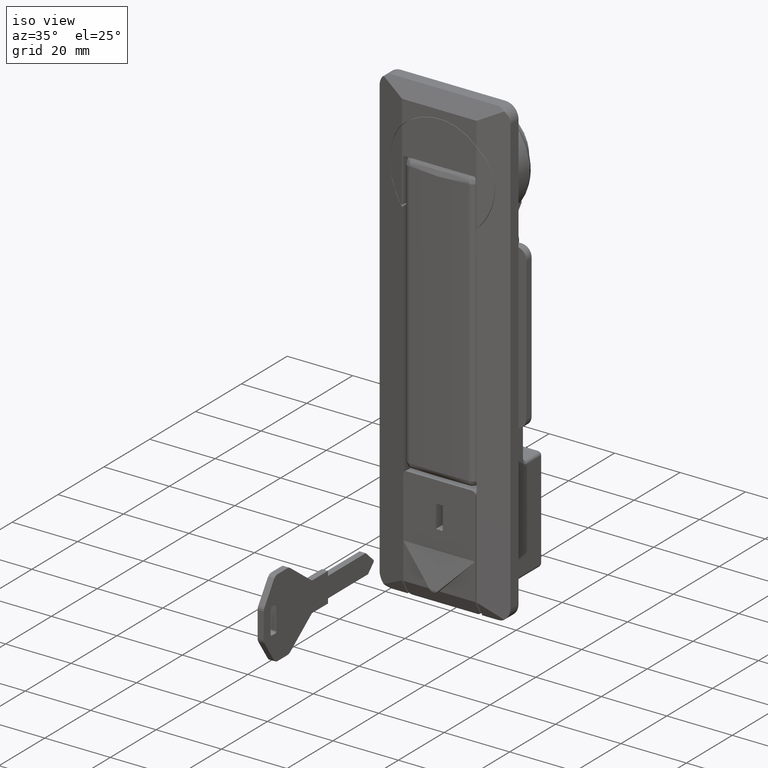
[diagram: clean part render]
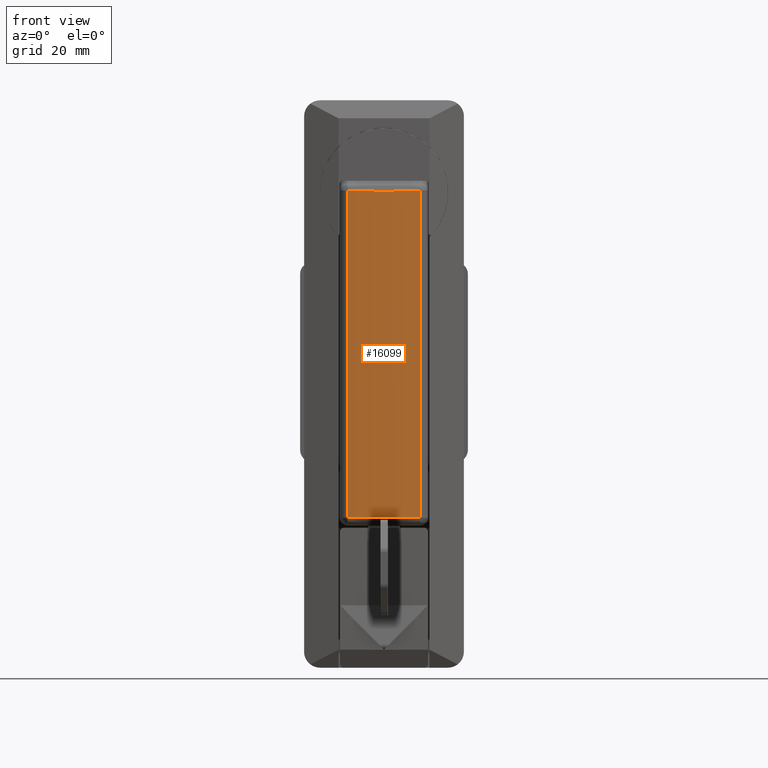
[diagram: tour spotlight — one face highlighted and labeled with its STEP entity id]
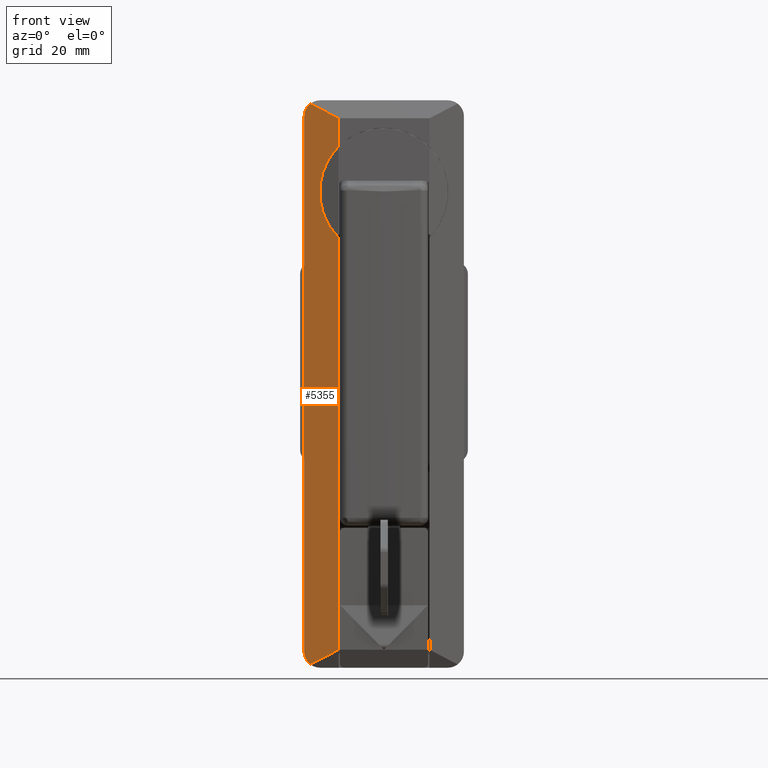
[diagram: tour spotlight — one face highlighted and labeled with its STEP entity id]
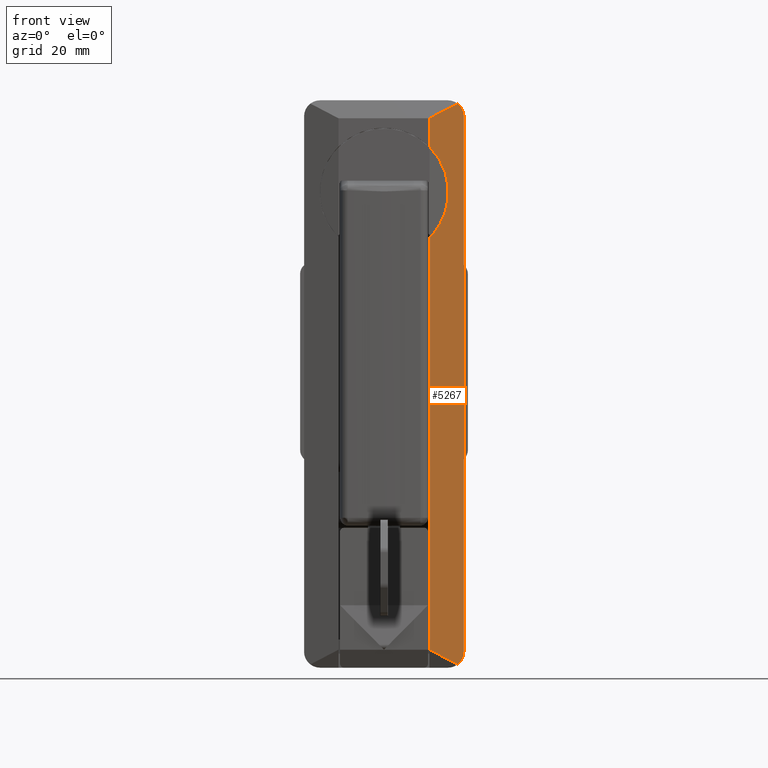
[diagram: tour spotlight — one face highlighted and labeled with its STEP entity id]
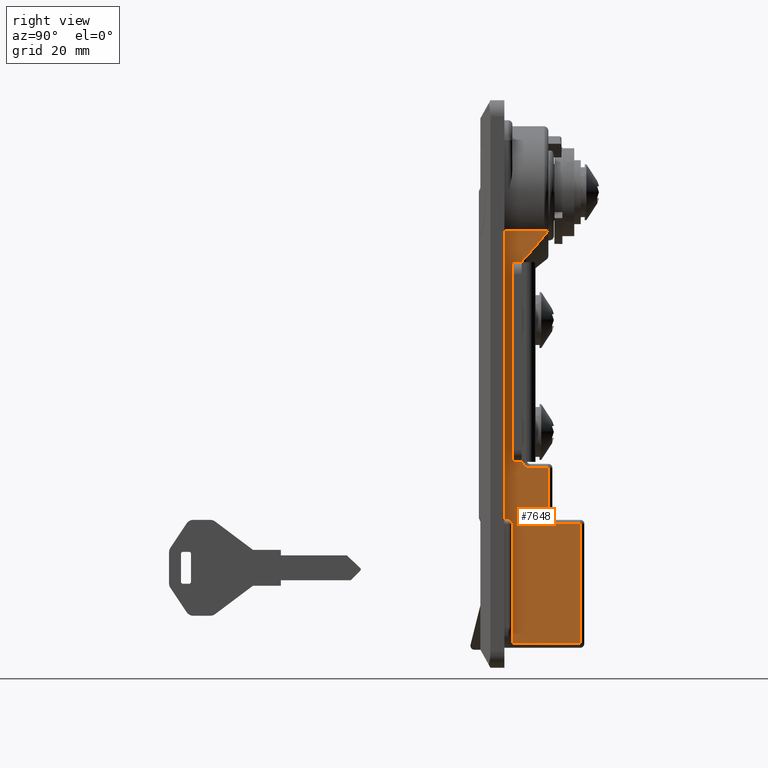
[diagram: tour spotlight — one face highlighted and labeled with its STEP entity id]
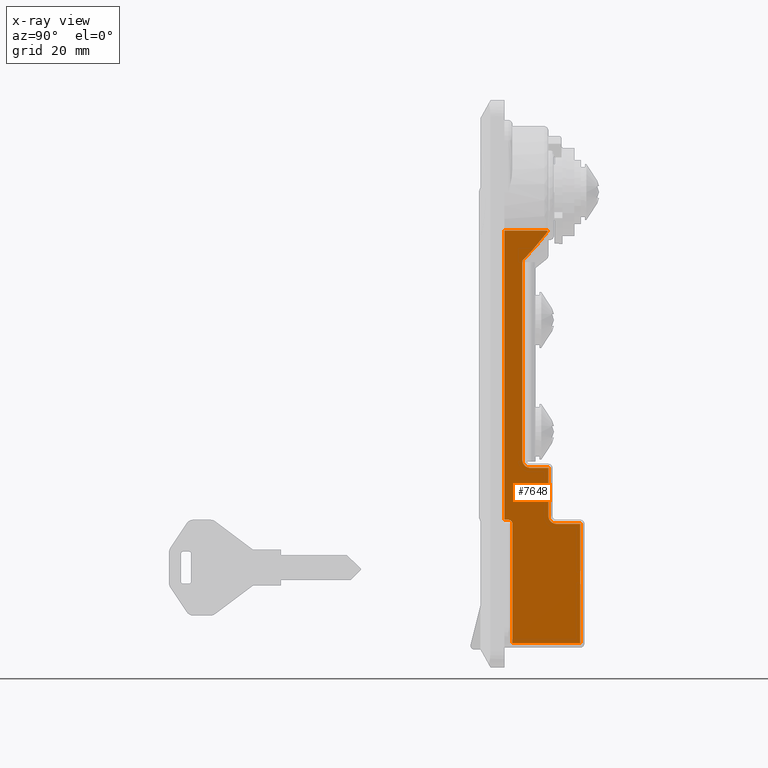
[diagram: x-ray of the same camera — body ghosted, this tour face saturated]
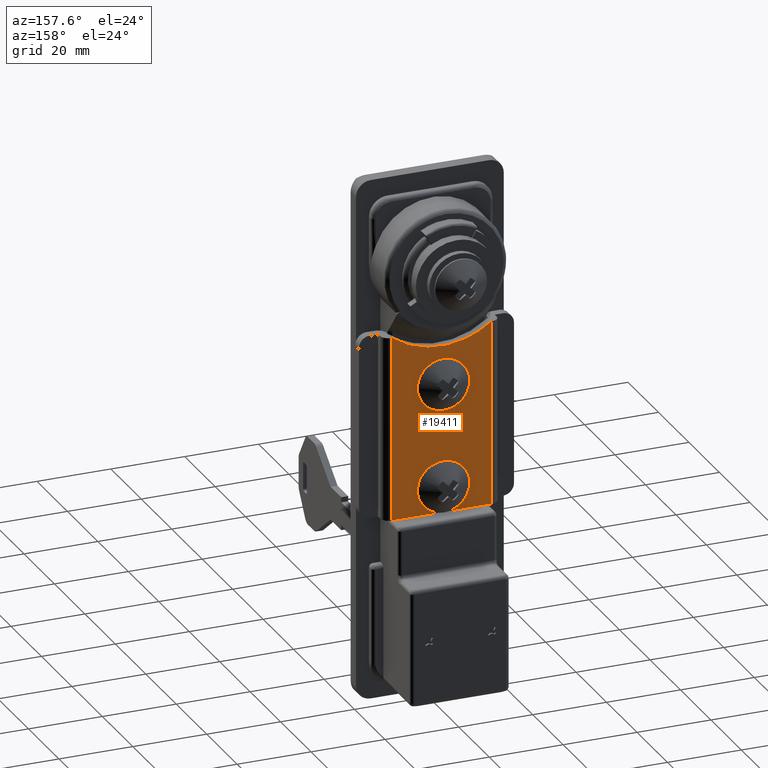
[diagram: tour spotlight — one face highlighted and labeled with its STEP entity id]
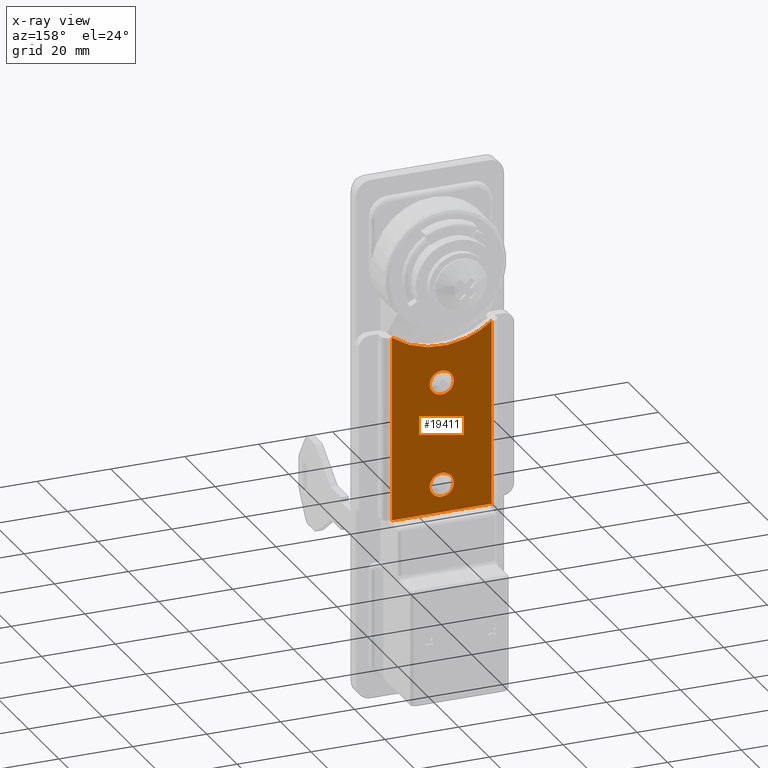
[diagram: x-ray of the same camera — body ghosted, this tour face saturated]
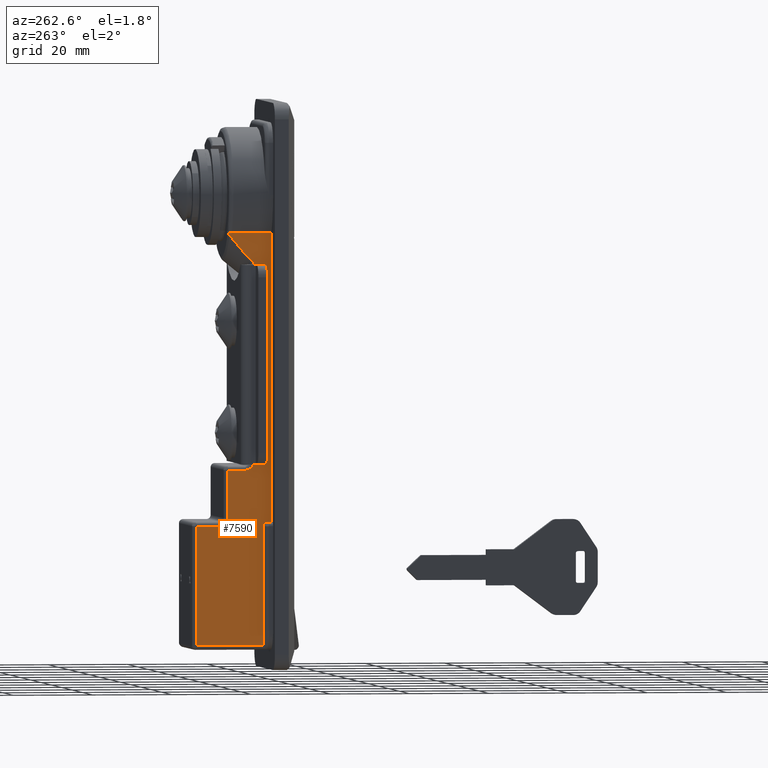
[diagram: tour spotlight — one face highlighted and labeled with its STEP entity id]
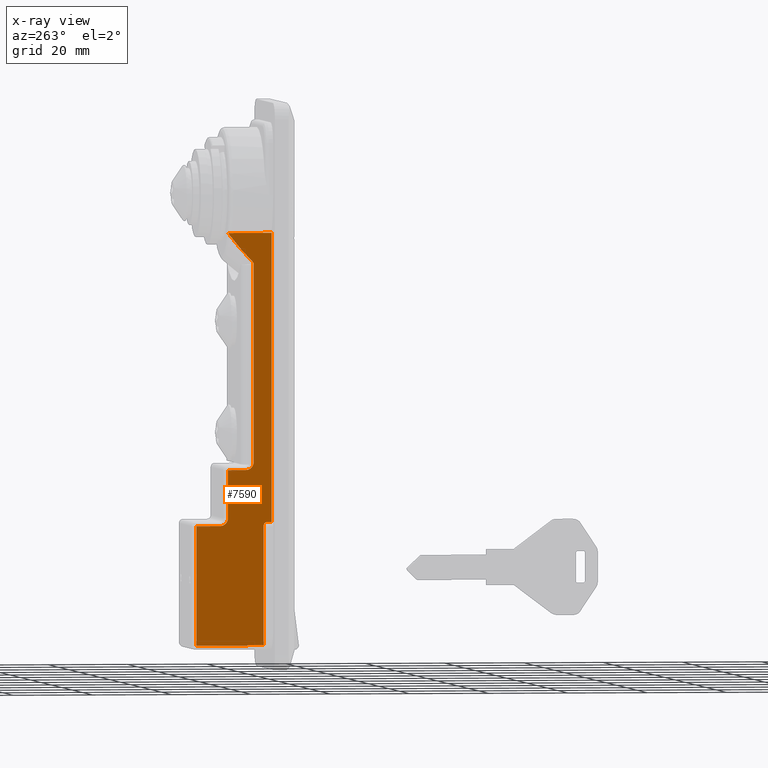
[diagram: x-ray of the same camera — body ghosted, this tour face saturated]
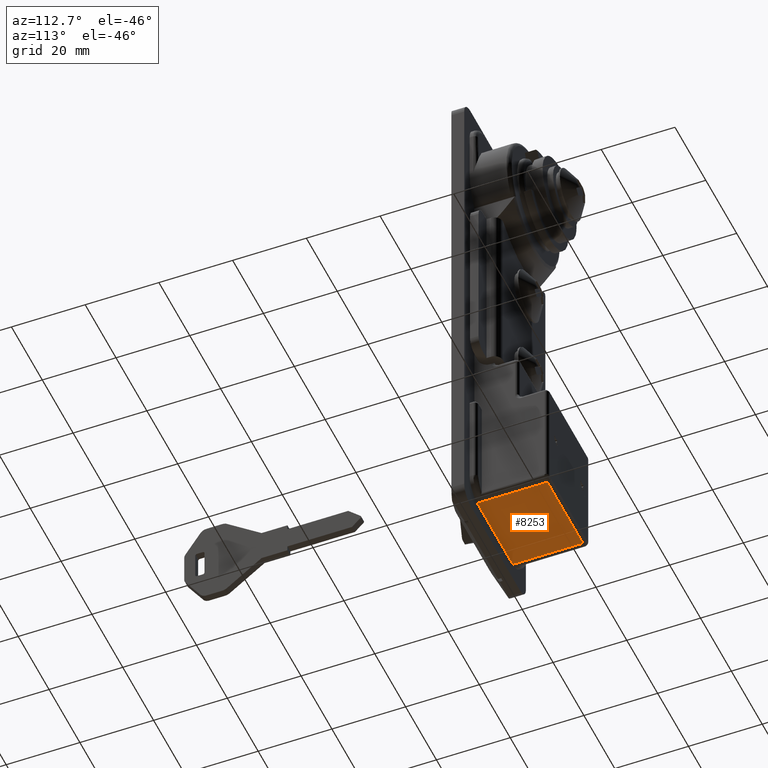
[diagram: tour spotlight — one face highlighted and labeled with its STEP entity id]
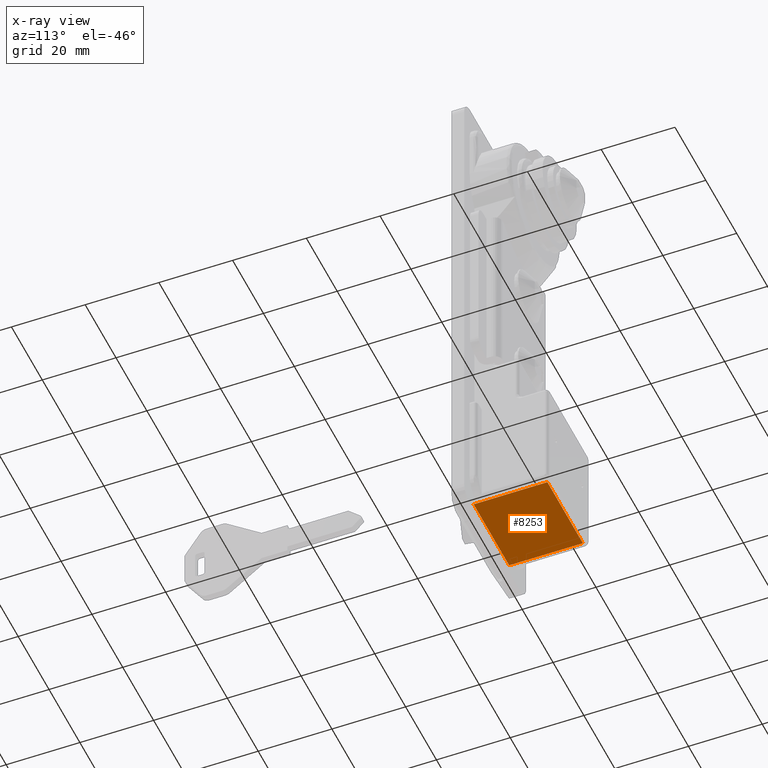
[diagram: x-ray of the same camera — body ghosted, this tour face saturated]
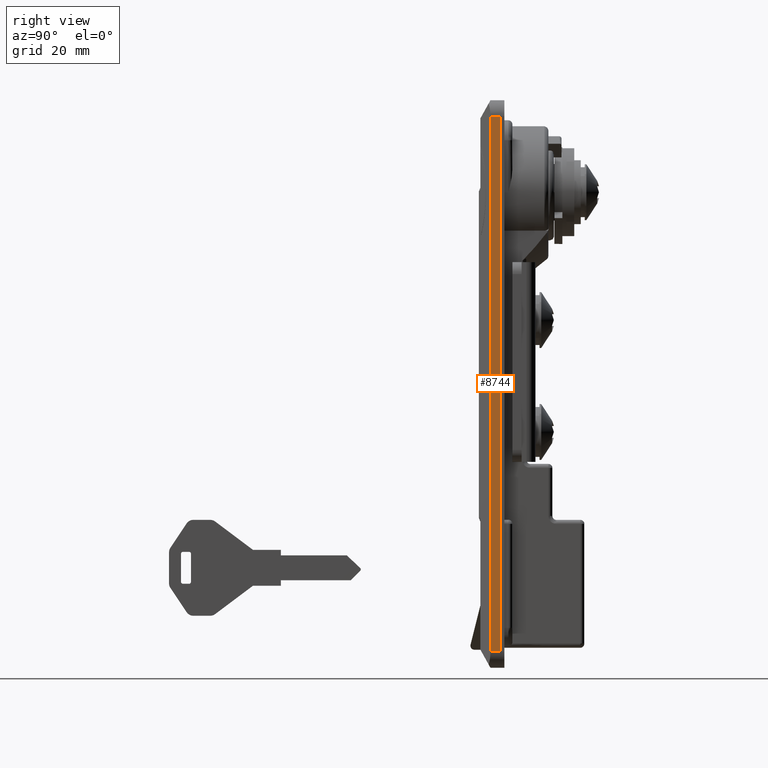
[diagram: tour spotlight — one face highlighted and labeled with its STEP entity id]
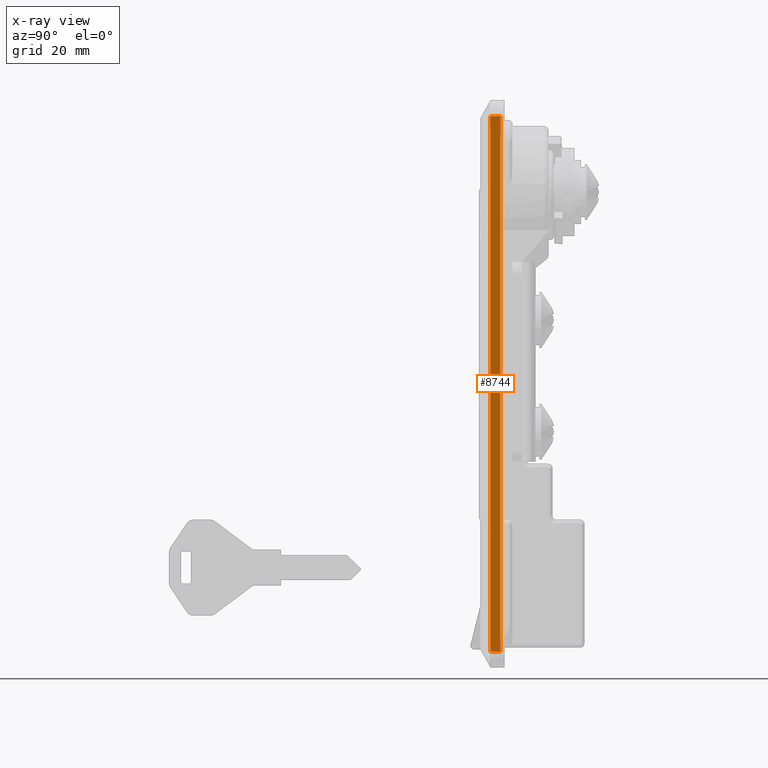
[diagram: x-ray of the same camera — body ghosted, this tour face saturated]
A machine part: a face-by-face anatomy tour. The part has 511 B-rep faces; the first image is the clean iso view, then the 8 largest visible faces are spotlighted one at a time (largest first), each with its STEP entity span.

Face 1 — front view, entity #16099. In plain terms, the highlighted face is a freeform B-spline surface patch.
Definition (entity closure, byte-faithful):
#14906=CARTESIAN_POINT('',(-5.122396517661780,-9.121621621621619,-81.421905110392601));
#14907=VERTEX_POINT('',#14906);
#14953=CARTESIAN_POINT('',(-5.122396517661780,9.121621621621619,-81.421905110392601));
#14954=VERTEX_POINT('',#14953);
#14976=CARTESIAN_POINT('',(-5.122396517661780,9.121621621621619,-81.421905110392601));
#14977=CARTESIAN_POINT('',(-5.492561438199060,3.048073997051807,-81.443700541794044));
#14978=CARTESIAN_POINT('',(-5.492504645446044,-3.048074295886886,-81.443697197818253));
#14979=CARTESIAN_POINT('',(-5.122396517661780,-9.121621621621619,-81.421905110392601));
#14980=B_SPLINE_CURVE_WITH_KNOTS('',3,(#14976,#14977,#14978,#14979),.UNSPECIFIED.,.F.,.U.,(4,4),(3.431140E-010,18.254555853600841),.UNSPECIFIED.);
#14981=EDGE_CURVE('',#14954,#14907,#14980,.T.);
#15562=CARTESIAN_POINT('',(-5.122396517661740,-9.121621621621619,0.530858135361710));
#15563=VERTEX_POINT('',#15562);
#15637=CARTESIAN_POINT('',(-5.122396517661740,9.121621621621619,0.530858135361710));
#15638=VERTEX_POINT('',#15637);
#15647=CARTESIAN_POINT('',(-5.122396517661740,-9.121621621621619,0.530858135361710));
#15648=CARTESIAN_POINT('',(-5.492513677982593,-3.055356192189407,0.165632048639938));
#15649=CARTESIAN_POINT('',(-5.492553553430390,3.055357177852950,0.165592700143524));
#15650=CARTESIAN_POINT('',(-5.122396517661740,9.121621621621619,0.530858135361710));
#15651=B_SPLINE_CURVE_WITH_KNOTS('',3,(#15647,#15648,#15649,#15650),.UNSPECIFIED.,.F.,.U.,(4,4),(5.912391E-010,18.265490315388430),.UNSPECIFIED.);
#15652=EDGE_CURVE('',#15563,#15638,#15651,.T.);
#15679=CARTESIAN_POINT('',(-5.122396517661780,-9.121621621621619,-81.421905110392601));
#15680=CARTESIAN_POINT('',(-5.122396517661740,-9.121621621621619,0.530858135361710));
#15681=QUASI_UNIFORM_CURVE('',1,(#15679,#15680),.UNSPECIFIED.,.F.,.U.);
#15682=EDGE_CURVE('',#14907,#15563,#15681,.T.);
#15806=CARTESIAN_POINT('',(-5.122396517661740,9.121621621621619,0.530858135361710));
#15807=CARTESIAN_POINT('',(-5.122396517661780,9.121621621621619,-81.421905110392601));
#15808=QUASI_UNIFORM_CURVE('',1,(#15806,#15807),.UNSPECIFIED.,.F.,.U.);
#15809=EDGE_CURVE('',#15638,#14954,#15808,.T.);
#16079=CARTESIAN_POINT('',(-5.064260431658100,10.030411230113678,2.580085851095813));
#16080=CARTESIAN_POINT('',(-5.064260431656622,10.030411230113689,-83.538708902629665));
#16081=CARTESIAN_POINT('',(-5.736527335402188,-0.000516381256083,2.580085851095794));
#16082=CARTESIAN_POINT('',(-5.736527335400711,-0.000516381256069,-83.538708902629693));
#16083=CARTESIAN_POINT('',(-5.064191522499450,-10.031439374136568,2.580085851095799));
#16084=CARTESIAN_POINT('',(-5.064191522497973,-10.031439374136548,-83.538708902629665));
#16092=(BOUNDED_SURFACE()B_SPLINE_SURFACE(1,2,((#16079,#16081,#16083),(#16080,#16082,#16084)),.UNSPECIFIED.,.F.,.F.,.U.)B_SPLINE_SURFACE_WITH_KNOTS((2,2),(3,3),(0.0,86.118794753725481),(0.0,20.084328162874851),.UNSPECIFIED.)GEOMETRIC_REPRESENTATION_ITEM()RATIONAL_B_SPLINE_SURFACE(((0.999885824516050,0.997057051863498,0.998702455599305),(0.999885824516050,0.997057051863498,0.998702455599305)))REPRESENTATION_ITEM('')SURFACE());
#16093=ORIENTED_EDGE('',*,*,#15809,.T.);
#16094=ORIENTED_EDGE('',*,*,#14981,.T.);
#16095=ORIENTED_EDGE('',*,*,#15682,.T.);
#16096=ORIENTED_EDGE('',*,*,#15652,.T.);
#16097=EDGE_LOOP('',(#16093,#16094,#16095,#16096));
#16098=FACE_OUTER_BOUND('',#16097,.T.);
#16099=ADVANCED_FACE('',(#16098),#16092,.T.);

Face 2 — front view, entity #5355. In plain terms, the highlighted face is a freeform B-spline surface patch.
Definition (entity closure, byte-faithful):
#5268=CARTESIAN_POINT('',(-2.375125004845412,20.429569983331529,-125.189126111268910));
#5269=CARTESIAN_POINT('',(-5.124875062209751,10.970429785998491,-125.189126111268910));
#5270=CARTESIAN_POINT('',(-2.375125004845412,20.429569983331529,29.188767366152181));
#5271=CARTESIAN_POINT('',(-5.124875062209751,10.970429785998491,29.188767366152181));
#5272=B_SPLINE_SURFACE_WITH_KNOTS('',1,1,((#5268,#5270),(#5269,#5271)),.UNSPECIFIED.,.F.,.F.,.U.,(2,2),(2,2),(0.0,9.850708535469767),(0.0,154.377893477421000),.UNSPECIFIED.);
#5273=CARTESIAN_POINT('',(-5.0,11.400000000000000,-11.368817000902100));
#5274=VERTEX_POINT('',#5273);
#5275=CARTESIAN_POINT('',(-5.0,11.400000000000000,11.368817000902061));
#5276=VERTEX_POINT('',#5275);
#5277=CARTESIAN_POINT('',(-5.000000000000006,11.400000000000000,-11.368817000902061));
#5278=CARTESIAN_POINT('',(-1.704151366788986,22.737719298245576,-1.734723E-015));
#5279=CARTESIAN_POINT('',(-5.000000000000006,11.400000000000000,11.368817000902061));
#5287=(BOUNDED_CURVE()B_SPLINE_CURVE(2,(#5277,#5278,#5279),.UNSPECIFIED.,.F.,.U.)CURVE()GEOMETRIC_REPRESENTATION_ITEM()QUASI_UNIFORM_CURVE()RATIONAL_B_SPLINE_CURVE((1.0,0.708074534161491,1.0))REPRESENTATION_ITEM(''));
#5288=EDGE_CURVE('',#5274,#5276,#5287,.T.);
#5289=ORIENTED_EDGE('',*,*,#5288,.T.);
#5290=CARTESIAN_POINT('',(-5.0,11.400000000000000,18.499970000000001));
#5291=VERTEX_POINT('',#5290);
#5292=CARTESIAN_POINT('',(-5.0,11.400000000000000,11.368817000902061));
#5293=CARTESIAN_POINT('',(-5.0,11.400000000000000,18.499970000000001));
#5294=QUASI_UNIFORM_CURVE('',1,(#5292,#5293),.UNSPECIFIED.,.F.,.U.);
#5295=EDGE_CURVE('',#5276,#5291,#5294,.T.);
#5296=ORIENTED_EDGE('',*,*,#5295,.T.);
#5297=CARTESIAN_POINT('',(-2.956668402593170,18.429060695079301,22.177966875332249));
#5298=VERTEX_POINT('',#5297);
#5299=CARTESIAN_POINT('',(-2.956668402593170,18.429060695079301,22.177966875332249));
#5300=CARTESIAN_POINT('',(-5.0,11.400000000000000,18.499970000000001));
#5301=QUASI_UNIFORM_CURVE('',1,(#5299,#5300),.UNSPECIFIED.,.F.,.U.);
#5302=EDGE_CURVE('',#5298,#5291,#5301,.T.);
#5303=ORIENTED_EDGE('',*,*,#5302,.F.);
#5304=CARTESIAN_POINT('',(-2.499999999999925,20.0,18.999970000000001));
#5305=VERTEX_POINT('',#5304);
#5306=CARTESIAN_POINT('',(-2.499999999999925,20.0,18.999970000000001));
#5307=CARTESIAN_POINT('',(-2.499999999999926,20.000000000000011,20.977239791691161));
#5308=CARTESIAN_POINT('',(-2.956668402593170,18.429060695079301,22.177966875332249));
#5316=(BOUNDED_CURVE()B_SPLINE_CURVE(2,(#5306,#5307,#5308),.UNSPECIFIED.,.F.,.U.)CURVE()GEOMETRIC_REPRESENTATION_ITEM()QUASI_UNIFORM_CURVE()RATIONAL_B_SPLINE_CURVE((1.0,0.896455568829206,1.0))REPRESENTATION_ITEM(''));
#5317=EDGE_CURVE('',#5305,#5298,#5316,.T.);
#5318=ORIENTED_EDGE('',*,*,#5317,.F.);
#5319=CARTESIAN_POINT('',(-2.499999999999925,20.0,-115.000330000000010));
#5320=VERTEX_POINT('',#5319);
#5321=CARTESIAN_POINT('',(-2.499999999999925,20.0,-115.000330000000010));
#5322=CARTESIAN_POINT('',(-2.499999999999925,20.0,18.999970000000001));
#5323=QUASI_UNIFORM_CURVE('',1,(#5321,#5322),.UNSPECIFIED.,.F.,.U.);
#5324=EDGE_CURVE('',#5320,#5305,#5323,.T.);
#5325=ORIENTED_EDGE('',*,*,#5324,.F.);
#5326=CARTESIAN_POINT('',(-2.956668402593175,18.429060695079301,-118.178326875332000));
#5327=VERTEX_POINT('',#5326);
#5328=CARTESIAN_POINT('',(-2.956668402593113,18.429060695079489,-118.178326875332000));
#5329=CARTESIAN_POINT('',(-2.499999999999926,20.000000000000007,-116.977599791690860));
#5330=CARTESIAN_POINT('',(-2.499999999999925,20.0,-115.000330000000010));
#5338=(BOUNDED_CURVE()B_SPLINE_CURVE(2,(#5328,#5329,#5330),.UNSPECIFIED.,.F.,.U.)CURVE()GEOMETRIC_REPRESENTATION_ITEM()QUASI_UNIFORM_CURVE()RATIONAL_B_SPLINE_CURVE((1.0,0.896455568829228,1.0))REPRESENTATION_ITEM(''));
#5339=EDGE_CURVE('',#5327,#5320,#5338,.T.);
#5340=ORIENTED_EDGE('',*,*,#5339,.F.);
#5341=CARTESIAN_POINT('',(-5.0,11.400000000000000,-114.500330000000010));
#5342=VERTEX_POINT('',#5341);
#5343=CARTESIAN_POINT('',(-5.0,11.400000000000000,-114.500330000000010));
#5344=CARTESIAN_POINT('',(-2.956668402593175,18.429060695079301,-118.178326875332000));
#5345=QUASI_UNIFORM_CURVE('',1,(#5343,#5344),.UNSPECIFIED.,.F.,.U.);
#5346=EDGE_CURVE('',#5342,#5327,#5345,.T.);
#5347=ORIENTED_EDGE('',*,*,#5346,.F.);
#5348=CARTESIAN_POINT('',(-5.0,11.400000000000000,-114.500330000000010));
#5349=CARTESIAN_POINT('',(-5.0,11.400000000000000,-11.368817000902100));
#5350=QUASI_UNIFORM_CURVE('',1,(#5348,#5349),.UNSPECIFIED.,.F.,.U.);
#5351=EDGE_CURVE('',#5342,#5274,#5350,.T.);
#5352=ORIENTED_EDGE('',*,*,#5351,.T.);
#5353=EDGE_LOOP('',(#5289,#5296,#5303,#5318,#5325,#5340,#5347,#5352));
#5354=FACE_OUTER_BOUND('',#5353,.T.);
#5355=ADVANCED_FACE('',(#5354),#5272,.T.);

Face 3 — front view, entity #5267. In plain terms, the highlighted face is a freeform B-spline surface patch.
Definition (entity closure, byte-faithful):
#5180=CARTESIAN_POINT('',(-5.124875112495575,-10.970429613015231,-125.189126111268910));
#5181=CARTESIAN_POINT('',(-2.375124932207877,-20.429570233204789,-125.189126111268910));
#5182=CARTESIAN_POINT('',(-5.124875112495575,-10.970429613015231,29.188767366152170));
#5183=CARTESIAN_POINT('',(-2.375124932207877,-20.429570233204789,29.188767366152170));
#5184=B_SPLINE_SURFACE_WITH_KNOTS('',1,1,((#5180,#5182),(#5181,#5183)),.UNSPECIFIED.,.F.,.F.,.U.,(2,2),(2,2),(0.0,9.850708975830743),(0.0,154.377893477421000),.UNSPECIFIED.);
#5185=CARTESIAN_POINT('',(-5.0,-11.400000000000000,11.368817000902199));
#5186=VERTEX_POINT('',#5185);
#5187=CARTESIAN_POINT('',(-5.0,-11.400000000000000,-11.368817000902100));
#5188=VERTEX_POINT('',#5187);
#5189=CARTESIAN_POINT('',(-5.0,-11.400000000000000,11.368817000902199));
#5190=CARTESIAN_POINT('',(-1.704151366788974,-22.737719298245668,-1.214306E-014));
#5191=CARTESIAN_POINT('',(-4.999999999999973,-11.399999999999981,-11.368817000902100));
#5199=(BOUNDED_CURVE()B_SPLINE_CURVE(2,(#5189,#5190,#5191),.UNSPECIFIED.,.F.,.U.)CURVE()GEOMETRIC_REPRESENTATION_ITEM()QUASI_UNIFORM_CURVE()RATIONAL_B_SPLINE_CURVE((1.0,0.708074534161489,1.0))REPRESENTATION_ITEM(''));
#5200=EDGE_CURVE('',#5186,#5188,#5199,.T.);
#5201=ORIENTED_EDGE('',*,*,#5200,.T.);
#5202=CARTESIAN_POINT('',(-5.0,-11.400000000000000,-114.500330000000010));
#5203=VERTEX_POINT('',#5202);
#5204=CARTESIAN_POINT('',(-5.0,-11.400000000000000,-114.500330000000010));
#5205=CARTESIAN_POINT('',(-5.0,-11.400000000000000,-11.368817000902100));
#5206=QUASI_UNIFORM_CURVE('',1,(#5204,#5205),.UNSPECIFIED.,.F.,.U.);
#5207=EDGE_CURVE('',#5203,#5188,#5206,.T.);
#5208=ORIENTED_EDGE('',*,*,#5207,.F.);
#5209=CARTESIAN_POINT('',(-2.956668402593175,-18.429060695079301,-118.178326875332000));
#5210=VERTEX_POINT('',#5209);
#5211=CARTESIAN_POINT('',(-2.956668402593175,-18.429060695079301,-118.178326875332000));
#5212=CARTESIAN_POINT('',(-5.0,-11.400000000000000,-114.500330000000010));
#5213=QUASI_UNIFORM_CURVE('',1,(#5211,#5212),.UNSPECIFIED.,.F.,.U.);
#5214=EDGE_CURVE('',#5210,#5203,#5213,.T.);
#5215=ORIENTED_EDGE('',*,*,#5214,.F.);
#5216=CARTESIAN_POINT('',(-2.499999999999935,-20.0,-115.000330000000010));
#5217=VERTEX_POINT('',#5216);
#5218=CARTESIAN_POINT('',(-2.499999999999932,-20.0,-115.000330000000010));
#5219=CARTESIAN_POINT('',(-2.499999999999932,-19.999999999999993,-116.977599791691120));
#5220=CARTESIAN_POINT('',(-2.956668402593166,-18.429060695079301,-118.178326875332200));
#5228=(BOUNDED_CURVE()B_SPLINE_CURVE(2,(#5218,#5219,#5220),.UNSPECIFIED.,.F.,.U.)CURVE()GEOMETRIC_REPRESENTATION_ITEM()QUASI_UNIFORM_CURVE()RATIONAL_B_SPLINE_CURVE((1.0,0.896455568829216,1.0))REPRESENTATION_ITEM(''));
#5229=EDGE_CURVE('',#5217,#5210,#5228,.T.);
#5230=ORIENTED_EDGE('',*,*,#5229,.F.);
#5231=CARTESIAN_POINT('',(-2.499999999999935,-20.0,18.999970000000001));
#5232=VERTEX_POINT('',#5231);
#5233=CARTESIAN_POINT('',(-2.499999999999935,-20.0,-115.000330000000010));
#5234=CARTESIAN_POINT('',(-2.499999999999935,-20.0,18.999970000000001));
#5235=QUASI_UNIFORM_CURVE('',1,(#5233,#5234),.UNSPECIFIED.,.F.,.U.);
#5236=EDGE_CURVE('',#5217,#5232,#5235,.T.);
#5237=ORIENTED_EDGE('',*,*,#5236,.T.);
#5238=CARTESIAN_POINT('',(-2.956668402593170,-18.429060695079301,22.177966875332249));
#5239=VERTEX_POINT('',#5238);
#5240=CARTESIAN_POINT('',(-2.956668402593170,-18.429060695079301,22.177966875332249));
#5241=CARTESIAN_POINT('',(-2.499999987887187,-20.000000041667850,20.977239759842778));
#5242=CARTESIAN_POINT('',(-2.499999999999935,-20.0,18.999970000000001));
#5250=(BOUNDED_CURVE()B_SPLINE_CURVE(2,(#5240,#5241,#5242),.UNSPECIFIED.,.F.,.U.)CURVE()GEOMETRIC_REPRESENTATION_ITEM()QUASI_UNIFORM_CURVE()RATIONAL_B_SPLINE_CURVE((1.0,0.896455564160045,1.0))REPRESENTATION_ITEM(''));
#5251=EDGE_CURVE('',#5239,#5232,#5250,.T.);
#5252=ORIENTED_EDGE('',*,*,#5251,.F.);
#5253=CARTESIAN_POINT('',(-5.0,-11.400000000000000,18.499970000000300));
#5254=VERTEX_POINT('',#5253);
#5255=CARTESIAN_POINT('',(-5.0,-11.400000000000000,18.499970000000300));
#5256=CARTESIAN_POINT('',(-2.956668402593170,-18.429060695079301,22.177966875332249));
#5257=QUASI_UNIFORM_CURVE('',1,(#5255,#5256),.UNSPECIFIED.,.F.,.U.);
#5258=EDGE_CURVE('',#5254,#5239,#5257,.T.);
#5259=ORIENTED_EDGE('',*,*,#5258,.F.);
#5260=CARTESIAN_POINT('',(-5.0,-11.400000000000000,11.368817000902199));
#5261=CARTESIAN_POINT('',(-5.0,-11.400000000000000,18.499970000000300));
#5262=QUASI_UNIFORM_CURVE('',1,(#5260,#5261),.UNSPECIFIED.,.F.,.U.);
#5263=EDGE_CURVE('',#5186,#5254,#5262,.T.);
#5264=ORIENTED_EDGE('',*,*,#5263,.F.);
#5265=EDGE_LOOP('',(#5201,#5208,#5215,#5230,#5237,#5252,#5259,#5264));
#5266=FACE_OUTER_BOUND('',#5265,.T.);
#5267=ADVANCED_FACE('',(#5266),#5184,.T.);

Face 4 — right view, entity #7648. An x-ray twin of the same camera follows (body ghosted, this face saturated) — the face is partly hidden behind the body. In plain terms, the highlighted face is a freeform B-spline surface patch.
Definition (entity closure, byte-faithful):
#4300=CARTESIAN_POINT('',(5.500000000000000,-13.400000000000141,-67.000029999999995));
#4301=VERTEX_POINT('',#4300);
#4302=CARTESIAN_POINT('',(7.500000000000000,-13.400000000000141,-69.000030000000010));
#4303=VERTEX_POINT('',#4302);
#4304=CARTESIAN_POINT('',(5.500000000000000,-13.400000000000141,-67.000029999999995));
#4305=CARTESIAN_POINT('',(5.499637217755775,-13.400000000000180,-67.278261565102142));
#4306=CARTESIAN_POINT('',(5.593732844036357,-13.400000000000061,-67.719716900364404));
#4307=CARTESIAN_POINT('',(5.941245588143056,-13.400000000000190,-68.299542527355314));
#4308=CARTESIAN_POINT('',(6.347200502456089,-13.400000000000141,-68.667507870074019));
#4309=CARTESIAN_POINT('',(6.894686201977806,-13.400000000000080,-68.934630348078613));
#4310=CARTESIAN_POINT('',(7.270906393169788,-13.400000000000171,-69.000178517922777));
#4311=CARTESIAN_POINT('',(7.500000000000000,-13.400000000000141,-69.000030000000010));
#4312=B_SPLINE_CURVE_WITH_KNOTS('',3,(#4304,#4305,#4306,#4307,#4308,#4309,#4310,#4311),.UNSPECIFIED.,.F.,.U.,(4,1,1,1,1,4),(0.000000494364178,0.834509432158222,1.325396360457787,2.012598309203618,2.454439677360208,3.141671488761369),.UNSPECIFIED.);
#4313=EDGE_CURVE('',#4301,#4303,#4312,.T.);
#4403=CARTESIAN_POINT('',(5.500000000000000,-13.400000000000141,-17.156414347120649));
#4404=VERTEX_POINT('',#4403);
#4440=CARTESIAN_POINT('',(5.500000000000000,-13.400000000000141,-67.000029999999995));
#4441=CARTESIAN_POINT('',(5.500000000000000,-13.400000000000141,-17.156414347120649));
#4442=QUASI_UNIFORM_CURVE('',1,(#4440,#4441),.UNSPECIFIED.,.F.,.U.);
#4443=EDGE_CURVE('',#4301,#4404,#4442,.T.);
#4468=CARTESIAN_POINT('',(12.000000000000121,-13.400000000000141,-69.000030000000010));
#4469=VERTEX_POINT('',#4468);
#4488=CARTESIAN_POINT('',(12.000000000000121,-13.400000000000141,-69.000030000000010));
#4489=CARTESIAN_POINT('',(7.500000000000000,-13.400000000000141,-69.000030000000010));
#4490=QUASI_UNIFORM_CURVE('',1,(#4488,#4489),.UNSPECIFIED.,.F.,.U.);
#4491=EDGE_CURVE('',#4469,#4303,#4490,.T.);
#4687=CARTESIAN_POINT('',(12.000000000000121,-13.400000000000141,-81.000029999999995));
#4688=VERTEX_POINT('',#4687);
#4707=CARTESIAN_POINT('',(12.000000000000121,-13.400000000000141,-81.000029999999995));
#4708=CARTESIAN_POINT('',(12.000000000000121,-13.400000000000141,-69.000030000000010));
#4709=QUASI_UNIFORM_CURVE('',1,(#4707,#4708),.UNSPECIFIED.,.F.,.U.);
#4710=EDGE_CURVE('',#4688,#4469,#4709,.T.);
#4772=CARTESIAN_POINT('',(14.0,-13.400000000000141,-83.000030000000010));
#4773=VERTEX_POINT('',#4772);
#4774=CARTESIAN_POINT('',(14.0,-13.400000000000141,-83.000030000000010));
#4775=CARTESIAN_POINT('',(13.705378256235001,-13.400000000000070,-83.000458795252300));
#4776=CARTESIAN_POINT('',(13.296718672661889,-13.400000000000221,-82.908027910189773));
#4777=CARTESIAN_POINT('',(12.714860380426270,-13.400000000000061,-82.568942376750584));
#4778=CARTESIAN_POINT('',(12.323860435532501,-13.400000000000110,-82.158325877265824));
#4779=CARTESIAN_POINT('',(12.055898709650110,-13.400000000000130,-81.572657403047771));
#4780=CARTESIAN_POINT('',(11.999910917658090,-13.400000000000260,-81.196387862098788));
#4781=CARTESIAN_POINT('',(12.000000000000121,-13.400000000000141,-81.000029999999995));
#4782=B_SPLINE_CURVE_WITH_KNOTS('',3,(#4774,#4775,#4776,#4777,#4778,#4779,#4780,#4781),.UNSPECIFIED.,.F.,.U.,(4,1,1,1,1,4),(0.000000494360984,0.883604180158832,1.227245902655042,2.012598309202469,2.552618571419643,3.141671488761215),.UNSPECIFIED.);
#4783=EDGE_CURVE('',#4773,#4688,#4782,.T.);
#4817=CARTESIAN_POINT('',(11.631061178545661,-13.400000000000141,-10.102688974386760));
#4818=VERTEX_POINT('',#4817);
#4819=CARTESIAN_POINT('',(11.869441024556441,-13.400000000000141,-9.627513178432709));
#4820=VERTEX_POINT('',#4819);
#4821=CARTESIAN_POINT('',(11.631061178545661,-13.400000000000141,-10.102688974386760));
#4822=CARTESIAN_POINT('',(11.684557153043700,-13.399999999995099,-10.030398951467371));
#4823=CARTESIAN_POINT('',(11.729727994088901,-13.400000000000141,-9.953932486802925));
#4824=CARTESIAN_POINT('',(11.808119890602439,-13.400000000000141,-9.795004748684221));
#4825=CARTESIAN_POINT('',(11.841262250311569,-13.400000000000141,-9.712503996185019));
#4826=CARTESIAN_POINT('',(11.869441024556400,-13.400000000000141,-9.627513178432709));
#4827=B_SPLINE_CURVE_WITH_KNOTS('',3,(#4821,#4822,#4823,#4824,#4825,#4826),.UNSPECIFIED.,.F.,.U.,(4,2,4),(0.0,0.500000000000000,1.0),.UNSPECIFIED.);
#4828=EDGE_CURVE('',#4818,#4820,#4827,.T.);
#5745=CARTESIAN_POINT('',(2.941897193495615,-13.400000000000141,-112.897760435504790));
#5746=VERTEX_POINT('',#5745);
#5774=CARTESIAN_POINT('',(3.000000000000085,-13.400000000000000,-112.520262385657200));
#5775=VERTEX_POINT('',#5774);
#5776=CARTESIAN_POINT('',(3.000000000000085,-13.400000000000000,-112.520262385657200));
#5777=CARTESIAN_POINT('',(3.000316767878389,-13.400000000000130,-112.648088468062300));
#5778=CARTESIAN_POINT('',(2.980663067633434,-13.400000000000171,-112.775944988263500));
#5779=CARTESIAN_POINT('',(2.941897193495615,-13.400000000000141,-112.897760435504790));
#5780=B_SPLINE_CURVE_WITH_KNOTS('',3,(#5776,#5777,#5778,#5779),.UNSPECIFIED.,.F.,.U.,(4,4),(0.000000028152857,0.383500621495434),.UNSPECIFIED.);
#5781=EDGE_CURVE('',#5775,#5746,#5780,.T.);
#5902=CARTESIAN_POINT('',(2.000000000000085,-13.400000000000000,-82.000029999999995));
#5903=VERTEX_POINT('',#5902);
#5904=CARTESIAN_POINT('',(3.000000000000085,-13.400000000000000,-83.000030000000010));
#5905=VERTEX_POINT('',#5904);
#5906=CARTESIAN_POINT('',(2.000000000000085,-13.400000000000000,-82.000029999999995));
#5907=CARTESIAN_POINT('',(2.180125117082060,-13.400000000000100,-81.999570247132269));
#5908=CARTESIAN_POINT('',(2.457657380949059,-13.400000000000171,-82.077216259501327));
#5909=CARTESIAN_POINT('',(2.777401869817654,-13.400000000000210,-82.339644901472710));
#5910=CARTESIAN_POINT('',(2.957432315848784,-13.400000000000150,-82.640059979966537));
#5911=CARTESIAN_POINT('',(3.000060012278344,-13.400000000000039,-82.885490158849251));
#5912=CARTESIAN_POINT('',(3.000000000000085,-13.400000000000000,-83.000030000000010));
#5913=B_SPLINE_CURVE_WITH_KNOTS('',3,(#5906,#5907,#5908,#5909,#5910,#5911,#5912),.UNSPECIFIED.,.F.,.U.,(4,1,1,1,4),(0.000000516449310,0.540045336884684,0.834543190476250,1.227311384574900,1.570953883368486),.UNSPECIFIED.);
#5914=EDGE_CURVE('',#5903,#5905,#5913,.T.);
#6257=CARTESIAN_POINT('',(20.0,-13.400000000000141,-112.897760435504790));
#6258=VERTEX_POINT('',#6257);
#6259=CARTESIAN_POINT('',(2.941897193495615,-13.400000000000141,-112.897760435504790));
#6260=CARTESIAN_POINT('',(20.0,-13.400000000000141,-112.897760435504790));
#6261=QUASI_UNIFORM_CURVE('',1,(#6259,#6260),.UNSPECIFIED.,.F.,.U.);
#6262=EDGE_CURVE('',#5746,#6258,#6261,.T.);
#6400=CARTESIAN_POINT('',(20.0,-13.400000000000141,-83.000030000000010));
#6401=VERTEX_POINT('',#6400);
#6412=CARTESIAN_POINT('',(20.0,-13.400000000000141,-112.897760435504790));
#6413=CARTESIAN_POINT('',(20.0,-13.400000000000141,-83.000030000000010));
#6414=QUASI_UNIFORM_CURVE('',1,(#6412,#6413),.UNSPECIFIED.,.F.,.U.);
#6415=EDGE_CURVE('',#6258,#6401,#6414,.T.);
#6629=CARTESIAN_POINT('',(20.0,-13.400000000000141,-83.000030000000010));
#6630=CARTESIAN_POINT('',(14.0,-13.400000000000141,-83.000030000000010));
#6631=QUASI_UNIFORM_CURVE('',1,(#6629,#6630),.UNSPECIFIED.,.F.,.U.);
#6632=EDGE_CURVE('',#6401,#4773,#6631,.T.);
#7591=CARTESIAN_POINT('',(0.050950036825774,-13.400000000000141,-118.056107146983390));
#7592=CARTESIAN_POINT('',(0.050950036825774,-13.400000000000141,-4.469161850414324));
#7593=CARTESIAN_POINT('',(20.949050472794021,-13.400000000000141,-118.056107146983390));
#7594=CARTESIAN_POINT('',(20.949050472794021,-13.400000000000141,-4.469161850414324));
#7595=B_SPLINE_SURFACE_WITH_KNOTS('',1,1,((#7591,#7593),(#7592,#7594)),.UNSPECIFIED.,.F.,.F.,.U.,(2,2),(2,2),(0.0,113.586945296569100),(0.0,20.898100435968249),.UNSPECIFIED.);
#7596=ORIENTED_EDGE('',*,*,#6632,.T.);
#7597=ORIENTED_EDGE('',*,*,#4783,.T.);
#7598=ORIENTED_EDGE('',*,*,#4710,.T.);
#7599=ORIENTED_EDGE('',*,*,#4491,.T.);
#7600=ORIENTED_EDGE('',*,*,#4313,.F.);
#7601=ORIENTED_EDGE('',*,*,#4443,.T.);
#7602=CARTESIAN_POINT('',(11.631061178545661,-13.400000000000141,-10.102688974386760));
#7603=CARTESIAN_POINT('',(11.168994059836461,-13.400000000000141,-10.727088154293160));
#7604=CARTESIAN_POINT('',(10.689467569997010,-13.400000000000141,-11.338527225608120));
#7605=CARTESIAN_POINT('',(9.704896110171745,-13.400000000000141,-12.542462974991601));
#7606=CARTESIAN_POINT('',(9.199801859597494,-13.400000000000141,-13.134923072030199));
#7607=CARTESIAN_POINT('',(8.170344445757397,-13.400000000000141,-14.305539933011470));
#7608=CARTESIAN_POINT('',(7.645952970348460,-13.400000000000141,-14.883675680822090));
#7609=CARTESIAN_POINT('',(6.848197219934879,-13.400000000000141,-15.742588886168630));
#7610=CARTESIAN_POINT('',(6.580415215647228,-13.400000000000141,-16.027488955980719));
#7611=CARTESIAN_POINT('',(6.042230990897071,-13.400000000000141,-16.594104595778781));
#7612=CARTESIAN_POINT('',(5.771736070378276,-13.400000000000141,-16.875919782999521));
#7613=CARTESIAN_POINT('',(5.500000000000000,-13.400000000000141,-17.156414347120649));
#7614=B_SPLINE_CURVE_WITH_KNOTS('',3,(#7602,#7603,#7604,#7605,#7606,#7607,#7608,#7609,#7610,#7611,#7612,#7613),.UNSPECIFIED.,.F.,.U.,(4,2,2,2,2,4),(0.0,0.250000000000000,0.500000000000000,0.750000000000000,0.875000000000000,1.0),.UNSPECIFIED.);
#7615=EDGE_CURVE('',#4818,#4404,#7614,.T.);
#7616=ORIENTED_EDGE('',*,*,#7615,.F.);
#7617=ORIENTED_EDGE('',*,*,#4828,.T.);
#7618=CARTESIAN_POINT('',(1.000000000000084,-13.400000000000000,-9.627513178432919));
#7619=VERTEX_POINT('',#7618);
#7620=CARTESIAN_POINT('',(11.869441024556441,-13.400000000000141,-9.627513178432709));
#7621=CARTESIAN_POINT('',(1.000000000000084,-13.400000000000000,-9.627513178432919));
#7622=QUASI_UNIFORM_CURVE('',1,(#7620,#7621),.UNSPECIFIED.,.F.,.U.);
#7623=EDGE_CURVE('',#4820,#7619,#7622,.T.);
#7624=ORIENTED_EDGE('',*,*,#7623,.T.);
#7625=CARTESIAN_POINT('',(1.000000000000084,-13.400000000000000,-82.000029999999995));
#7626=VERTEX_POINT('',#7625);
#7627=CARTESIAN_POINT('',(1.000000000000084,-13.400000000000000,-9.627513178432919));
#7628=CARTESIAN_POINT('',(1.000000000000084,-13.400000000000000,-82.000029999999995));
#7629=QUASI_UNIFORM_CURVE('',1,(#7627,#7628),.UNSPECIFIED.,.F.,.U.);
#7630=EDGE_CURVE('',#7619,#7626,#7629,.T.);
#7631=ORIENTED_EDGE('',*,*,#7630,.T.);
#7632=CARTESIAN_POINT('',(1.000000000000084,-13.400000000000000,-82.000029999999995));
#7633=CARTESIAN_POINT('',(2.000000000000085,-13.400000000000000,-82.000029999999995));
#7634=QUASI_UNIFORM_CURVE('',1,(#7632,#7633),.UNSPECIFIED.,.F.,.U.);
#7635=EDGE_CURVE('',#7626,#5903,#7634,.T.);
#7636=ORIENTED_EDGE('',*,*,#7635,.T.);
#7637=ORIENTED_EDGE('',*,*,#5914,.T.);
#7638=CARTESIAN_POINT('',(3.000000000000085,-13.400000000000000,-83.000030000000010));
#7639=CARTESIAN_POINT('',(3.000000000000085,-13.400000000000000,-112.520262385657200));
#7640=QUASI_UNIFORM_CURVE('',1,(#7638,#7639),.UNSPECIFIED.,.F.,.U.);
#7641=EDGE_CURVE('',#5905,#5775,#7640,.T.);
#7642=ORIENTED_EDGE('',*,*,#7641,.T.);
#7643=ORIENTED_EDGE('',*,*,#5781,.T.);
#7644=ORIENTED_EDGE('',*,*,#6262,.T.);
#7645=ORIENTED_EDGE('',*,*,#6415,.T.);
#7646=EDGE_LOOP('',(#7596,#7597,#7598,#7599,#7600,#7601,#7616,#7617,#7624,#7631,#7636,#7637,#7642,#7643,#7644,#7645));
#7647=FACE_OUTER_BOUND('',#7646,.T.);
#7648=ADVANCED_FACE('',(#7647),#7595,.F.);

Face 5 — auxiliary view, entity #19411. An x-ray twin of the same camera follows (body ghosted, this face saturated) — the face is partly hidden behind the body. In plain terms, the highlighted face is a freeform B-spline surface patch.
Definition (entity closure, byte-faithful):
#18328=CARTESIAN_POINT('',(8.800000000059221,-2.318063071998377,-29.722075358080119));
#18329=VERTEX_POINT('',#18328);
#18330=CARTESIAN_POINT('',(8.800000000000141,-3.249999999997728,-32.000033842795702));
#18331=VERTEX_POINT('',#18330);
#18332=CARTESIAN_POINT('',(8.800000000059221,-2.318063071998377,-29.722075358080119));
#18333=CARTESIAN_POINT('',(8.800000000052894,-2.557790650489401,-29.965765340760569));
#18334=CARTESIAN_POINT('',(8.800000000039976,-2.912786058545041,-30.464661367360119));
#18335=CARTESIAN_POINT('',(8.800000000019232,-3.195209018955775,-31.263825418456420));
#18336=CARTESIAN_POINT('',(8.800000000006289,-3.250040227232185,-31.763389666523889));
#18337=CARTESIAN_POINT('',(8.800000000000141,-3.249999999997728,-32.000033842795702));
#18338=B_SPLINE_CURVE_WITH_KNOTS('',3,(#18332,#18333,#18334,#18335,#18336,#18337),.UNSPECIFIED.,.F.,.U.,(4,1,1,4),(0.000000103679861,1.025494808091789,1.814300298617711,2.524248131646909),.UNSPECIFIED.);
#18339=EDGE_CURVE('',#18329,#18331,#18338,.T.);
#18341=CARTESIAN_POINT('',(8.800000000000141,0.0,-35.250030000000002));
#18342=VERTEX_POINT('',#18341);
#18343=CARTESIAN_POINT('',(8.800000000000141,-3.249999999997728,-32.000033842795702));
#18344=CARTESIAN_POINT('',(8.800000000000134,-3.250614312872499,-32.452161706253200));
#18345=CARTESIAN_POINT('',(8.800000000000173,-3.103337813116911,-33.142985056202029));
#18346=CARTESIAN_POINT('',(8.800000000000111,-2.658649761626908,-33.905617971792672));
#18347=CARTESIAN_POINT('',(8.800000000000168,-2.216707403918252,-34.405388823593483));
#18348=CARTESIAN_POINT('',(8.800000000000118,-1.578149446189811,-34.891646488298221));
#18349=CARTESIAN_POINT('',(8.800000000000175,-0.797741162861660,-35.192594711487537));
#18350=CARTESIAN_POINT('',(8.800000000000134,-0.212698017165700,-35.250023257933329));
#18351=CARTESIAN_POINT('',(8.800000000000141,0.0,-35.250030000000002));
#18352=B_SPLINE_CURVE_WITH_KNOTS('',3,(#18343,#18344,#18345,#18346,#18347,#18348,#18349,#18350,#18351),.UNSPECIFIED.,.F.,.U.,(4,1,1,1,1,1,4),(0.000000402087826,1.356076156654163,2.074046934343738,2.632319782284156,3.350263862434953,4.467071842083151,5.105214003205226),.UNSPECIFIED.);
#18353=EDGE_CURVE('',#18331,#18342,#18352,.T.);
#18355=CARTESIAN_POINT('',(8.800000000000141,3.249999999997728,-32.000026157204317));
#18356=VERTEX_POINT('',#18355);
#18357=CARTESIAN_POINT('',(8.800000000000141,0.0,-35.250030000000002));
#18358=CARTESIAN_POINT('',(8.800000000000132,0.398879966007441,-35.250370088089049));
#18359=CARTESIAN_POINT('',(8.800000000000146,1.169734729878732,-35.106257477340392));
#18360=CARTESIAN_POINT('',(8.800000000000148,2.049247651120567,-34.579274044337609));
#18361=CARTESIAN_POINT('',(8.800000000000139,2.722892128194031,-33.853867682403227));
#18362=CARTESIAN_POINT('',(8.800000000000139,3.147573993442822,-33.010481190802182));
#18363=CARTESIAN_POINT('',(8.800000000000148,3.250075604764599,-32.319079621220887));
#18364=CARTESIAN_POINT('',(8.800000000000141,3.249999999997728,-32.000026157204317));
#18365=B_SPLINE_CURVE_WITH_KNOTS('',3,(#18357,#18358,#18359,#18360,#18361,#18362,#18363,#18364),.UNSPECIFIED.,.F.,.U.,(4,1,1,1,1,4),(0.000000396833287,1.196532459391488,2.313358460813214,3.031170043811025,4.147993051909117,5.105218335039686),.UNSPECIFIED.);
#18366=EDGE_CURVE('',#18342,#18356,#18365,.T.);
#18368=CARTESIAN_POINT('',(8.799999999941649,2.277955980447344,-29.681965549917720));
#18369=VERTEX_POINT('',#18368);
#18370=CARTESIAN_POINT('',(8.800000000000141,3.249999999997728,-32.000026157204317));
#18371=CARTESIAN_POINT('',(8.799999999989964,3.250330724306310,-31.596703377376329));
#18372=CARTESIAN_POINT('',(8.799999999968289,3.087727476584404,-30.736712422556138));
#18373=CARTESIAN_POINT('',(8.799999999949705,2.604436566167817,-30.001920158702589));
#18374=CARTESIAN_POINT('',(8.799999999941649,2.277955980447344,-29.681965549917720));
#18375=B_SPLINE_CURVE_WITH_KNOTS('',3,(#18370,#18371,#18372,#18373,#18374),.UNSPECIFIED.,.F.,.U.,(4,1,4),(0.000000115792455,1.209858294082480,2.580968103245945),.UNSPECIFIED.);
#18376=EDGE_CURVE('',#18356,#18369,#18375,.T.);
#18455=CARTESIAN_POINT('',(8.800000000000141,0.0,-28.750029999999999));
#18456=VERTEX_POINT('',#18455);
#18457=CARTESIAN_POINT('',(8.800000000000141,0.0,-28.750029999999999));
#18458=CARTESIAN_POINT('',(8.800000000011803,-0.457141572476034,-28.749369905676811));
#18459=CARTESIAN_POINT('',(8.800000000033691,-1.316805615960791,-28.934806049064161));
#18460=CARTESIAN_POINT('',(8.800000000052032,-2.035634887176153,-29.434139760106088));
#18461=CARTESIAN_POINT('',(8.800000000059221,-2.318063071998377,-29.722075358080119));
#18462=B_SPLINE_CURVE_WITH_KNOTS('',3,(#18457,#18458,#18459,#18460,#18461),.UNSPECIFIED.,.F.,.U.,(4,1,4),(0.000000115699168,1.371111555232546,2.580971172312242),.UNSPECIFIED.);
#18463=EDGE_CURVE('',#18456,#18329,#18462,.T.);
#18486=CARTESIAN_POINT('',(8.799999999941649,2.277955980447344,-29.681965549917720));
#18487=CARTESIAN_POINT('',(8.799999999947913,2.034266289853357,-29.442211629379042));
#18488=CARTESIAN_POINT('',(8.799999999958494,1.622126365217612,-29.149067339283221));
#18489=CARTESIAN_POINT('',(8.799999999978537,0.841289990541873,-28.829612708154482));
#18490=CARTESIAN_POINT('',(8.799999999991361,0.341853897149872,-28.749823515536079));
#18491=CARTESIAN_POINT('',(8.800000000000141,0.0,-28.750029999999999));
#18492=B_SPLINE_CURVE_WITH_KNOTS('',3,(#18486,#18487,#18488,#18489,#18490,#18491),.UNSPECIFIED.,.F.,.U.,(4,1,1,4),(0.000000103590887,1.025493545458689,1.498751581767905,2.524245023413723),.UNSPECIFIED.);
#18493=EDGE_CURVE('',#18369,#18456,#18492,.T.);
#18520=CARTESIAN_POINT('',(8.800000000059221,-2.318063071998377,-57.722075358080119));
#18521=VERTEX_POINT('',#18520);
#18522=CARTESIAN_POINT('',(8.800000000000141,-3.249999999997728,-60.000033842795702));
#18523=VERTEX_POINT('',#18522);
#18524=CARTESIAN_POINT('',(8.800000000059221,-2.318063071998377,-57.722075358080119));
#18525=CARTESIAN_POINT('',(8.800000000054835,-2.483949164733242,-57.890838600263869));
#18526=CARTESIAN_POINT('',(8.800000000044086,-2.811419119449706,-58.306336701798109));
#18527=CARTESIAN_POINT('',(8.800000000023960,-3.161248639874207,-59.079808795715181));
#18528=CARTESIAN_POINT('',(8.800000000008344,-3.250130283216242,-59.684498214585517));
#18529=CARTESIAN_POINT('',(8.800000000000141,-3.249999999997728,-60.000033842795702));
#18530=B_SPLINE_CURVE_WITH_KNOTS('',3,(#18524,#18525,#18526,#18527,#18528,#18529),.UNSPECIFIED.,.F.,.U.,(4,1,1,4),(0.000000103679016,0.709947936532159,1.577654537992940,2.524248131646912),.UNSPECIFIED.);
#18531=EDGE_CURVE('',#18521,#18523,#18530,.T.);
#18533=CARTESIAN_POINT('',(8.800000000000141,0.0,-63.250030000000002));
#18534=VERTEX_POINT('',#18533);
#18535=CARTESIAN_POINT('',(8.800000000000141,-3.249999999997728,-60.000033842795702));
#18536=CARTESIAN_POINT('',(8.800000000000143,-3.250143654401455,-60.319118660384660));
#18537=CARTESIAN_POINT('',(8.800000000000127,-3.163142440374554,-60.903997640556419));
#18538=CARTESIAN_POINT('',(8.800000000000152,-2.826591284825537,-61.663262362643422));
#18539=CARTESIAN_POINT('',(8.800000000000107,-2.373018661673839,-62.259370316921931));
#18540=CARTESIAN_POINT('',(8.800000000000241,-1.861257148607717,-62.689892771546653));
#18541=CARTESIAN_POINT('',(8.799999999999915,-1.089770091271856,-63.114699800598792));
#18542=CARTESIAN_POINT('',(8.800000000000283,-0.452141749156484,-63.250642849163519));
#18543=CARTESIAN_POINT('',(8.800000000000141,0.0,-63.250030000000002));
#18544=B_SPLINE_CURVE_WITH_KNOTS('',3,(#18535,#18536,#18537,#18538,#18539,#18540,#18541,#18542,#18543),.UNSPECIFIED.,.F.,.U.,(4,1,1,1,1,1,4),(0.000000402088429,0.957224873058894,1.754950541517685,2.472894627885206,3.190749358076515,3.749138247010621,5.105214003205220),.UNSPECIFIED.);
#18545=EDGE_CURVE('',#18523,#18534,#18544,.T.);
#18547=CARTESIAN_POINT('',(8.800000000000141,3.249999999997728,-60.000026157204339));
#18548=VERTEX_POINT('',#18547);
#18549=CARTESIAN_POINT('',(8.800000000000141,0.0,-63.250030000000002));
#18550=CARTESIAN_POINT('',(8.800000000000145,0.319085283410387,-63.250179843967913));
#18551=CARTESIAN_POINT('',(8.800000000000136,0.850774977854286,-63.171047223314822));
#18552=CARTESIAN_POINT('',(8.800000000000139,1.566621988449715,-62.874529046117779));
#18553=CARTESIAN_POINT('',(8.800000000000150,2.140129875339409,-62.481045176307518));
#18554=CARTESIAN_POINT('',(8.800000000000138,2.722965838628070,-61.853954097145859));
#18555=CARTESIAN_POINT('',(8.800000000000143,3.147521226900619,-61.010446715985651));
#18556=CARTESIAN_POINT('',(8.800000000000154,3.250103317541701,-60.319088347194757));
#18557=CARTESIAN_POINT('',(8.800000000000141,3.249999999997728,-60.000026157204339));
#18558=B_SPLINE_CURVE_WITH_KNOTS('',3,(#18549,#18550,#18551,#18552,#18553,#18554,#18555,#18556,#18557),.UNSPECIFIED.,.F.,.U.,(4,1,1,1,1,1,4),(0.000000396831924,0.957225681768276,1.595384081971031,2.313358460811991,3.031170043810135,4.147993051908992,5.105218335039664),.UNSPECIFIED.);
#18559=EDGE_CURVE('',#18534,#18548,#18558,.T.);
#18561=CARTESIAN_POINT('',(8.799999999941647,2.277955980447344,-57.681965549917727));
#18562=VERTEX_POINT('',#18561);
#18563=CARTESIAN_POINT('',(8.800000000000141,3.249999999997728,-60.000026157204339));
#18564=CARTESIAN_POINT('',(8.799999999993359,3.250064895570530,-59.731174549079597));
#18565=CARTESIAN_POINT('',(8.799999999980454,3.186252685727232,-59.220407460482022));
#18566=CARTESIAN_POINT('',(8.799999999960042,2.881463780703801,-58.410154274557669));
#18567=CARTESIAN_POINT('',(8.799999999947806,2.527411042113824,-57.926801734581247));
#18568=CARTESIAN_POINT('',(8.799999999941647,2.277955980447344,-57.681965549917727));
#18569=B_SPLINE_CURVE_WITH_KNOTS('',3,(#18563,#18564,#18565,#18566,#18567,#18568),.UNSPECIFIED.,.F.,.U.,(4,1,1,4),(0.000000115792741,0.806563776622985,1.532429587982316,2.580968103245946),.UNSPECIFIED.);
#18570=EDGE_CURVE('',#18548,#18562,#18569,.T.);
#18648=CARTESIAN_POINT('',(8.800000000000141,0.0,-56.750030000000002));
#18649=VERTEX_POINT('',#18648);
#18650=CARTESIAN_POINT('',(8.800000000000141,0.0,-56.750030000000002));
#18651=CARTESIAN_POINT('',(8.800000000010423,-0.403311581403373,-56.749698578949442));
#18652=CARTESIAN_POINT('',(8.800000000032362,-1.263388085628488,-56.912201004538112));
#18653=CARTESIAN_POINT('',(8.800000000051053,-1.998049280304629,-57.395676686140867));
#18654=CARTESIAN_POINT('',(8.800000000059221,-2.318063071998377,-57.722075358080119));
#18655=B_SPLINE_CURVE_WITH_KNOTS('',3,(#18650,#18651,#18652,#18653,#18654),.UNSPECIFIED.,.F.,.U.,(4,1,4),(0.000000115699155,1.209859732843888,2.580971172312250),.UNSPECIFIED.);
#18656=EDGE_CURVE('',#18649,#18521,#18655,.T.);
#18679=CARTESIAN_POINT('',(8.799999999941647,2.277955980447344,-57.681965549917727));
#18680=CARTESIAN_POINT('',(8.799999999947415,2.052990478781490,-57.460712553094567));
#18681=CARTESIAN_POINT('',(8.799999999960113,1.559399497573751,-57.100272653329100));
#18682=CARTESIAN_POINT('',(8.799999999980553,0.762521473396405,-56.807657936472090));
#18683=CARTESIAN_POINT('',(8.799999999994077,0.236641247948342,-56.749999525614889));
#18684=CARTESIAN_POINT('',(8.800000000000141,0.0,-56.750030000000002));
#18685=B_SPLINE_CURVE_WITH_KNOTS('',3,(#18679,#18680,#18681,#18682,#18683,#18684),.UNSPECIFIED.,.F.,.U.,(4,1,1,4),(0.000000103590115,0.946592531685975,1.814298064739711,2.524245023413748),.UNSPECIFIED.);
#18686=EDGE_CURVE('',#18562,#18649,#18685,.T.);
#18937=CARTESIAN_POINT('',(8.800000000000141,13.332252247804920,-17.500029999999999));
#18938=VERTEX_POINT('',#18937);
#18962=CARTESIAN_POINT('',(8.800000000000141,-13.332252247804920,-17.500029999999999));
#18963=VERTEX_POINT('',#18962);
#18969=CARTESIAN_POINT('',(8.800000000000141,-13.332252247804920,-17.500029999999999));
#18970=CARTESIAN_POINT('',(8.800000000000082,-12.145588629620111,-18.404376028158101));
#18971=CARTESIAN_POINT('',(8.800000000000241,-10.226822837698130,-19.578518813647580));
#18972=CARTESIAN_POINT('',(8.800000000000091,-7.264385915167093,-20.819550740247990));
#18973=CARTESIAN_POINT('',(8.800000000000166,-4.677604675932646,-21.562708557060098));
#18974=CARTESIAN_POINT('',(8.800000000000095,-1.571745125310229,-22.024172732408839));
#18975=CARTESIAN_POINT('',(8.800000000000251,2.020841561764165,-22.024352060807210));
#18976=CARTESIAN_POINT('',(8.799999999999999,5.708925010390676,-21.360689997752988));
#18977=CARTESIAN_POINT('',(8.800000000000216,9.643252193405731,-19.920320315786409));
#18978=CARTESIAN_POINT('',(8.800000000000171,12.026951892173960,-18.494846601386161));
#18979=CARTESIAN_POINT('',(8.800000000000141,13.332252247804920,-17.500029999999999));
#18980=B_SPLINE_CURVE_WITH_KNOTS('',3,(#18969,#18970,#18971,#18972,#18973,#18974,#18975,#18976,#18977,#18978,#18979),.UNSPECIFIED.,.F.,.U.,(4,1,1,1,1,1,1,1,4),(0.000000091192700,4.475897208205215,6.713846202406650,9.623201099020765,12.532559824211960,16.113179069639632,20.365331562317390,23.722261401504529,28.645743025650440),.UNSPECIFIED.);
#18981=EDGE_CURVE('',#18963,#18938,#18980,.T.);
#19013=CARTESIAN_POINT('',(8.800000000000001,-13.500000000000000,-17.500029999999999));
#19014=VERTEX_POINT('',#19013);
#19026=CARTESIAN_POINT('',(8.800000000000001,-13.500000000000000,-17.500029999999999));
#19027=CARTESIAN_POINT('',(8.800000000000141,-13.332252247804920,-17.500029999999999));
#19028=QUASI_UNIFORM_CURVE('',1,(#19026,#19027),.UNSPECIFIED.,.F.,.U.);
#19029=EDGE_CURVE('',#19014,#18963,#19028,.T.);
#19147=CARTESIAN_POINT('',(8.800000000000130,13.500000000000000,-67.500030000000010));
#19148=VERTEX_POINT('',#19147);
#19160=CARTESIAN_POINT('',(8.800000000000001,-13.500000000000000,-67.500030000000010));
#19161=VERTEX_POINT('',#19160);
#19162=CARTESIAN_POINT('',(8.800000000000001,-13.500000000000000,-67.500030000000010));
#19163=CARTESIAN_POINT('',(8.800000000000130,13.500000000000000,-67.500030000000010));
#19164=QUASI_UNIFORM_CURVE('',1,(#19162,#19163),.UNSPECIFIED.,.F.,.U.);
#19165=EDGE_CURVE('',#19161,#19148,#19164,.T.);
#19351=CARTESIAN_POINT('',(8.800000000000130,13.500000000000000,-17.500029999999999));
#19352=VERTEX_POINT('',#19351);
#19364=CARTESIAN_POINT('',(8.800000000000130,13.500000000000000,-67.500030000000010));
#19365=CARTESIAN_POINT('',(8.800000000000130,13.500000000000000,-17.500029999999999));
#19366=QUASI_UNIFORM_CURVE('',1,(#19364,#19365),.UNSPECIFIED.,.F.,.U.);
#19367=EDGE_CURVE('',#19148,#19352,#19366,.T.);
#19374=CARTESIAN_POINT('',(8.800000000000130,-14.848649947668759,-15.002530566273929));
#19375=CARTESIAN_POINT('',(8.800000000000130,-14.848649947668759,-69.997531221865415));
#19376=CARTESIAN_POINT('',(8.800000000000130,14.848650671865190,-15.002530566273929));
#19377=CARTESIAN_POINT('',(8.800000000000130,14.848650671865190,-69.997531221865415));
#19378=B_SPLINE_SURFACE_WITH_KNOTS('',1,1,((#19374,#19376),(#19375,#19377)),.UNSPECIFIED.,.F.,.F.,.U.,(2,2),(2,2),(0.0,54.995000655591483),(0.0,29.697300619533959),.UNSPECIFIED.);
#19379=ORIENTED_EDGE('',*,*,#18981,.F.);
#19380=ORIENTED_EDGE('',*,*,#19029,.F.);
#19381=CARTESIAN_POINT('',(8.800000000000001,-13.500000000000000,-67.500030000000010));
#19382=CARTESIAN_POINT('',(8.800000000000001,-13.500000000000000,-17.500029999999999));
#19383=QUASI_UNIFORM_CURVE('',1,(#19381,#19382),.UNSPECIFIED.,.F.,.U.);
#19384=EDGE_CURVE('',#19161,#19014,#19383,.T.);
#19385=ORIENTED_EDGE('',*,*,#19384,.F.);
#19386=ORIENTED_EDGE('',*,*,#19165,.T.);
#19387=ORIENTED_EDGE('',*,*,#19367,.T.);
#19388=CARTESIAN_POINT('',(8.800000000000141,13.332252247804920,-17.500029999999999));
#19389=CARTESIAN_POINT('',(8.800000000000130,13.500000000000000,-17.500029999999999));
#19390=QUASI_UNIFORM_CURVE('',1,(#19388,#19389),.UNSPECIFIED.,.F.,.U.);
#19391=EDGE_CURVE('',#18938,#19352,#19390,.T.);
#19392=ORIENTED_EDGE('',*,*,#19391,.F.);
#19393=EDGE_LOOP('',(#19379,#19380,#19385,#19386,#19387,#19392));
#19394=FACE_OUTER_BOUND('',#19393,.T.);
#19395=ORIENTED_EDGE('',*,*,#18366,.F.);
#19396=ORIENTED_EDGE('',*,*,#18353,.F.);
#19397=ORIENTED_EDGE('',*,*,#18339,.F.);
#19398=ORIENTED_EDGE('',*,*,#18463,.F.);
#19399=ORIENTED_EDGE('',*,*,#18493,.F.);
#19400=ORIENTED_EDGE('',*,*,#18376,.F.);
#19401=EDGE_LOOP('',(#19395,#19396,#19397,#19398,#19399,#19400));
#19402=FACE_BOUND('',#19401,.T.);
#19403=ORIENTED_EDGE('',*,*,#18559,.F.);
#19404=ORIENTED_EDGE('',*,*,#18545,.F.);
#19405=ORIENTED_EDGE('',*,*,#18531,.F.);
#19406=ORIENTED_EDGE('',*,*,#18656,.F.);
#19407=ORIENTED_EDGE('',*,*,#18686,.F.);
#19408=ORIENTED_EDGE('',*,*,#18570,.F.);
#19409=EDGE_LOOP('',(#19403,#19404,#19405,#19406,#19407,#19408));
#19410=FACE_BOUND('',#19409,.T.);
#19411=ADVANCED_FACE('',(#19394,#19402,#19410),#19378,.T.);

Face 6 — auxiliary view, entity #7590. An x-ray twin of the same camera follows (body ghosted, this face saturated) — the face is partly hidden behind the body. In plain terms, the highlighted face is a freeform B-spline surface patch.
Definition (entity closure, byte-faithful):
#4084=CARTESIAN_POINT('',(5.500000000000000,13.400000000000141,-67.000029999999995));
#4085=VERTEX_POINT('',#4084);
#4096=CARTESIAN_POINT('',(5.500000000000000,13.400000000000141,-17.156414347120752));
#4097=VERTEX_POINT('',#4096);
#4098=CARTESIAN_POINT('',(5.500000000000000,13.400000000000141,-17.156414347120752));
#4099=CARTESIAN_POINT('',(5.500000000000000,13.400000000000141,-67.000029999999995));
#4100=QUASI_UNIFORM_CURVE('',1,(#4098,#4099),.UNSPECIFIED.,.F.,.U.);
#4101=EDGE_CURVE('',#4097,#4085,#4100,.T.);
#4162=CARTESIAN_POINT('',(7.500000000000000,13.400000000000141,-69.000030000000010));
#4163=VERTEX_POINT('',#4162);
#4174=CARTESIAN_POINT('',(7.500000000000000,13.400000000000141,-69.000030000000010));
#4175=CARTESIAN_POINT('',(7.205375070638262,13.400000000000130,-69.000438333415531));
#4176=CARTESIAN_POINT('',(6.764050517723263,13.400000000000180,-68.900616667770024));
#4177=CARTESIAN_POINT('',(6.189333199914247,13.400000000000100,-68.546483855043860));
#4178=CARTESIAN_POINT('',(5.810187374549492,13.400000000000150,-68.128215484063290));
#4179=CARTESIAN_POINT('',(5.555884865285049,13.400000000000199,-67.572674144763113));
#4180=CARTESIAN_POINT('',(5.499911185809720,13.400000000000050,-67.196387226306882));
#4181=CARTESIAN_POINT('',(5.500000000000000,13.400000000000141,-67.000029999999995));
#4182=B_SPLINE_CURVE_WITH_KNOTS('',3,(#4174,#4175,#4176,#4177,#4178,#4179,#4180,#4181),.UNSPECIFIED.,.F.,.U.,(4,1,1,1,1,4),(0.000000494364482,0.883604180161420,1.325396360457393,2.012598309203831,2.552618571420284,3.141671488761381),.UNSPECIFIED.);
#4183=EDGE_CURVE('',#4163,#4085,#4182,.T.);
#4257=CARTESIAN_POINT('',(12.0,13.400000000000141,-69.000030000000010));
#4258=VERTEX_POINT('',#4257);
#4269=CARTESIAN_POINT('',(7.500000000000000,13.400000000000141,-69.000030000000010));
#4270=CARTESIAN_POINT('',(12.0,13.400000000000141,-69.000030000000010));
#4271=QUASI_UNIFORM_CURVE('',1,(#4269,#4270),.UNSPECIFIED.,.F.,.U.);
#4272=EDGE_CURVE('',#4163,#4258,#4271,.T.);
#4552=CARTESIAN_POINT('',(12.0,13.400000000000141,-81.000029999999995));
#4553=VERTEX_POINT('',#4552);
#4564=CARTESIAN_POINT('',(12.0,13.400000000000141,-69.000030000000010));
#4565=CARTESIAN_POINT('',(12.0,13.400000000000141,-81.000029999999995));
#4566=QUASI_UNIFORM_CURVE('',1,(#4564,#4565),.UNSPECIFIED.,.F.,.U.);
#4567=EDGE_CURVE('',#4258,#4553,#4566,.T.);
#4634=CARTESIAN_POINT('',(14.0,13.400000000000141,-83.000030000000010));
#4635=VERTEX_POINT('',#4634);
#4648=CARTESIAN_POINT('',(12.0,13.400000000000141,-81.000029999999995));
#4649=CARTESIAN_POINT('',(11.999288456900111,13.400000000000180,-81.327461455740604));
#4650=CARTESIAN_POINT('',(12.110851066671239,13.400000000000080,-81.768564521079583));
#4651=CARTESIAN_POINT('',(12.442412186358039,13.400000000000190,-82.277873307283514));
#4652=CARTESIAN_POINT('',(12.722151578282840,13.400000000000100,-82.557625321304755));
#4653=CARTESIAN_POINT('',(13.231471333930431,13.400000000000199,-82.889168752205279));
#4654=CARTESIAN_POINT('',(13.672561644710161,13.400000000000100,-83.000752282345715));
#4655=CARTESIAN_POINT('',(14.0,13.400000000000141,-83.000030000000010));
#4656=B_SPLINE_CURVE_WITH_KNOTS('',3,(#4648,#4649,#4650,#4651,#4652,#4653,#4654,#4655),.UNSPECIFIED.,.F.,.U.,(4,1,1,1,1,4),(0.000000494365538,0.981783074222152,1.325396360457870,1.816275622669284,2.159888908905076,3.141671488761387),.UNSPECIFIED.);
#4657=EDGE_CURVE('',#4553,#4635,#4656,.T.);
#4830=CARTESIAN_POINT('',(11.631061178561099,13.400000000000141,-10.102688974365879));
#4831=VERTEX_POINT('',#4830);
#4848=CARTESIAN_POINT('',(11.868988411526260,13.400000000000141,-9.628876800518880));
#4849=VERTEX_POINT('',#4848);
#4850=CARTESIAN_POINT('',(11.868988411526260,13.400000000000141,-9.628876800518880));
#4851=CARTESIAN_POINT('',(11.840829784126340,13.400000000000141,-9.713618227523590));
#4852=CARTESIAN_POINT('',(11.807730004598961,13.400000000000141,-9.795878429439032));
#4853=CARTESIAN_POINT('',(11.729481459529090,13.400000000000141,-9.954348372642556));
#4854=CARTESIAN_POINT('',(11.684410468486250,13.400000000000141,-10.030597168804711));
#4855=CARTESIAN_POINT('',(11.631061178561099,13.400000000000141,-10.102688974365879));
#4856=B_SPLINE_CURVE_WITH_KNOTS('',3,(#4850,#4851,#4852,#4853,#4854,#4855),.UNSPECIFIED.,.F.,.U.,(4,2,4),(0.0,0.500000000000000,1.0),.UNSPECIFIED.);
#4857=EDGE_CURVE('',#4849,#4831,#4856,.T.);
#5991=CARTESIAN_POINT('',(2.941896371006145,13.400000000000141,-112.897758126226190));
#5992=VERTEX_POINT('',#5991);
#6045=CARTESIAN_POINT('',(3.000000000000085,13.400000000000000,-112.520256987751200));
#6046=VERTEX_POINT('',#6045);
#6057=CARTESIAN_POINT('',(2.941896371006145,13.400000000000141,-112.897758126226190));
#6058=CARTESIAN_POINT('',(2.980636691925795,13.400000000000190,-112.775942197975000));
#6059=CARTESIAN_POINT('',(3.000341816831435,13.400000000000160,-112.648090481566900));
#6060=CARTESIAN_POINT('',(3.000000000000085,13.400000000000000,-112.520256987751200));
#6061=B_SPLINE_CURVE_WITH_KNOTS('',3,(#6057,#6058,#6059,#6060),.UNSPECIFIED.,.F.,.U.,(4,4),(0.000000028154354,0.383503831557026),.UNSPECIFIED.);
#6062=EDGE_CURVE('',#5992,#6046,#6061,.T.);
#6215=CARTESIAN_POINT('',(3.000000000000085,13.400000000000000,-83.000030000000010));
#6216=VERTEX_POINT('',#6215);
#6217=CARTESIAN_POINT('',(2.000000000000085,13.400000000000000,-82.000029999999995));
#6218=VERTEX_POINT('',#6217);
#6219=CARTESIAN_POINT('',(3.000000000000085,13.400000000000000,-83.000030000000010));
#6220=CARTESIAN_POINT('',(3.000064982727390,13.400000000000061,-82.885491453139679));
#6221=CARTESIAN_POINT('',(2.957409123495424,13.400000000000150,-82.640066308744892));
#6222=CARTESIAN_POINT('',(2.760324147580606,13.400000000000230,-82.310927616036139));
#6223=CARTESIAN_POINT('',(2.425223033575643,13.400000000000119,-82.062625340010058));
#6224=CARTESIAN_POINT('',(2.147310314619412,13.400000000000070,-81.999801620243176));
#6225=CARTESIAN_POINT('',(2.000000000000085,13.400000000000000,-82.000029999999995));
#6226=B_SPLINE_CURVE_WITH_KNOTS('',3,(#6219,#6220,#6221,#6222,#6223,#6224,#6225),.UNSPECIFIED.,.F.,.U.,(4,1,1,1,4),(0.000000516447628,0.343647204978147,0.736408411950126,1.129119788273472,1.570953883368516),.UNSPECIFIED.);
#6227=EDGE_CURVE('',#6216,#6218,#6226,.T.);
#6662=CARTESIAN_POINT('',(20.0,13.400000000000141,-112.897758126226190));
#6663=VERTEX_POINT('',#6662);
#6712=CARTESIAN_POINT('',(20.0,13.400000000000141,-83.000030000000010));
#6713=VERTEX_POINT('',#6712);
#6758=CARTESIAN_POINT('',(20.0,13.400000000000141,-112.897758126226190));
#6759=CARTESIAN_POINT('',(2.941896371006145,13.400000000000141,-112.897758126226190));
#6760=QUASI_UNIFORM_CURVE('',1,(#6758,#6759),.UNSPECIFIED.,.F.,.U.);
#6761=EDGE_CURVE('',#6663,#5992,#6760,.T.);
#6782=CARTESIAN_POINT('',(20.0,13.400000000000141,-83.000030000000010));
#6783=CARTESIAN_POINT('',(20.0,13.400000000000141,-112.897758126226190));
#6784=QUASI_UNIFORM_CURVE('',1,(#6782,#6783),.UNSPECIFIED.,.F.,.U.);
#6785=EDGE_CURVE('',#6713,#6663,#6784,.T.);
#6810=CARTESIAN_POINT('',(14.0,13.400000000000141,-83.000030000000010));
#6811=CARTESIAN_POINT('',(20.0,13.400000000000141,-83.000030000000010));
#6812=QUASI_UNIFORM_CURVE('',1,(#6810,#6811),.UNSPECIFIED.,.F.,.U.);
#6813=EDGE_CURVE('',#4635,#6713,#6812,.T.);
#7505=CARTESIAN_POINT('',(6.500000000000000,13.400000000000000,-9.627513178432919));
#7506=VERTEX_POINT('',#7505);
#7512=CARTESIAN_POINT('',(6.500000000000000,13.400000000000141,-9.628876800518880));
#7513=VERTEX_POINT('',#7512);
#7519=CARTESIAN_POINT('',(6.500000000000000,13.400000000000141,-9.628876800518880));
#7520=CARTESIAN_POINT('',(6.500000000000000,13.400000000000000,-9.627513178432919));
#7521=QUASI_UNIFORM_CURVE('',1,(#7519,#7520),.UNSPECIFIED.,.F.,.U.);
#7522=EDGE_CURVE('',#7513,#7506,#7521,.T.);
#7527=CARTESIAN_POINT('',(0.050950036825774,13.400000000000141,-4.469163674021242));
#7528=CARTESIAN_POINT('',(0.050950036825774,13.400000000000141,-118.056109477253800));
#7529=CARTESIAN_POINT('',(20.949050472794021,13.400000000000141,-4.469163674021242));
#7530=CARTESIAN_POINT('',(20.949050472794021,13.400000000000141,-118.056109477253800));
#7531=B_SPLINE_SURFACE_WITH_KNOTS('',1,1,((#7527,#7529),(#7528,#7530)),.UNSPECIFIED.,.F.,.F.,.U.,(2,2),(2,2),(0.0,113.586945803232500),(0.0,20.898100435968249),.UNSPECIFIED.);
#7532=ORIENTED_EDGE('',*,*,#4567,.T.);
#7533=ORIENTED_EDGE('',*,*,#4657,.T.);
#7534=ORIENTED_EDGE('',*,*,#6813,.T.);
#7535=ORIENTED_EDGE('',*,*,#6785,.T.);
#7536=ORIENTED_EDGE('',*,*,#6761,.T.);
#7537=ORIENTED_EDGE('',*,*,#6062,.T.);
#7538=CARTESIAN_POINT('',(3.000000000000085,13.400000000000000,-83.000030000000010));
#7539=CARTESIAN_POINT('',(3.000000000000085,13.400000000000000,-112.520256987751200));
#7540=QUASI_UNIFORM_CURVE('',1,(#7538,#7539),.UNSPECIFIED.,.F.,.U.);
#7541=EDGE_CURVE('',#6216,#6046,#7540,.T.);
#7542=ORIENTED_EDGE('',*,*,#7541,.F.);
#7543=ORIENTED_EDGE('',*,*,#6227,.T.);
#7544=CARTESIAN_POINT('',(1.000000000000084,13.400000000000000,-82.000029999999995));
#7545=VERTEX_POINT('',#7544);
#7546=CARTESIAN_POINT('',(1.000000000000084,13.400000000000000,-82.000029999999995));
#7547=CARTESIAN_POINT('',(2.000000000000085,13.400000000000000,-82.000029999999995));
#7548=QUASI_UNIFORM_CURVE('',1,(#7546,#7547),.UNSPECIFIED.,.F.,.U.);
#7549=EDGE_CURVE('',#7545,#6218,#7548,.T.);
#7550=ORIENTED_EDGE('',*,*,#7549,.F.);
#7551=CARTESIAN_POINT('',(1.000000000000084,13.400000000000000,-9.627513178432919));
#7552=VERTEX_POINT('',#7551);
#7553=CARTESIAN_POINT('',(1.000000000000084,13.400000000000000,-9.627513178432919));
#7554=CARTESIAN_POINT('',(1.000000000000084,13.400000000000000,-82.000029999999995));
#7555=QUASI_UNIFORM_CURVE('',1,(#7553,#7554),.UNSPECIFIED.,.F.,.U.);
#7556=EDGE_CURVE('',#7552,#7545,#7555,.T.);
#7557=ORIENTED_EDGE('',*,*,#7556,.F.);
#7558=CARTESIAN_POINT('',(1.000000000000084,13.400000000000000,-9.627513178432919));
#7559=CARTESIAN_POINT('',(6.500000000000000,13.400000000000000,-9.627513178432919));
#7560=QUASI_UNIFORM_CURVE('',1,(#7558,#7559),.UNSPECIFIED.,.F.,.U.);
#7561=EDGE_CURVE('',#7552,#7506,#7560,.T.);
#7562=ORIENTED_EDGE('',*,*,#7561,.T.);
#7563=ORIENTED_EDGE('',*,*,#7522,.F.);
#7564=CARTESIAN_POINT('',(11.868988411526260,13.400000000000141,-9.628876800518880));
#7565=CARTESIAN_POINT('',(6.500000000000000,13.400000000000141,-9.628876800518880));
#7566=QUASI_UNIFORM_CURVE('',1,(#7564,#7565),.UNSPECIFIED.,.F.,.U.);
#7567=EDGE_CURVE('',#4849,#7513,#7566,.T.);
#7568=ORIENTED_EDGE('',*,*,#7567,.F.);
#7569=ORIENTED_EDGE('',*,*,#4857,.T.);
#7570=CARTESIAN_POINT('',(5.500000000000000,13.400000000000141,-17.156414347120752));
#7571=CARTESIAN_POINT('',(5.771736070378990,13.400000000000141,-16.875919782998789));
#7572=CARTESIAN_POINT('',(6.042230990898537,13.400000000000141,-16.594104595777239));
#7573=CARTESIAN_POINT('',(6.580415215650183,13.400000000000141,-16.027488955977589));
#7574=CARTESIAN_POINT('',(6.848197219938563,13.400000000000141,-15.742588886164700));
#7575=CARTESIAN_POINT('',(7.645952970354312,13.400000000000141,-14.883675680815710));
#7576=CARTESIAN_POINT('',(8.170344445764648,13.400000000000141,-14.305539933003431));
#7577=CARTESIAN_POINT('',(9.199801859607401,13.400000000000141,-13.134923072018729));
#7578=CARTESIAN_POINT('',(9.704896110182919,13.400000000000141,-12.542462974978360));
#7579=CARTESIAN_POINT('',(10.689467570010500,13.400000000000141,-11.338527225591200));
#7580=CARTESIAN_POINT('',(11.168994059851009,13.400000000000141,-10.727088154274311));
#7581=CARTESIAN_POINT('',(11.631061178561099,13.400000000000141,-10.102688974365879));
#7582=B_SPLINE_CURVE_WITH_KNOTS('',3,(#7570,#7571,#7572,#7573,#7574,#7575,#7576,#7577,#7578,#7579,#7580,#7581),.UNSPECIFIED.,.F.,.U.,(4,2,2,2,2,4),(0.0,0.125000000000000,0.250000000000000,0.500000000000000,0.750000000000000,1.0),.UNSPECIFIED.);
#7583=EDGE_CURVE('',#4097,#4831,#7582,.T.);
#7584=ORIENTED_EDGE('',*,*,#7583,.F.);
#7585=ORIENTED_EDGE('',*,*,#4101,.T.);
#7586=ORIENTED_EDGE('',*,*,#4183,.F.);
#7587=ORIENTED_EDGE('',*,*,#4272,.T.);
#7588=EDGE_LOOP('',(#7532,#7533,#7534,#7535,#7536,#7537,#7542,#7543,#7550,#7557,#7562,#7563,#7568,#7569,#7584,#7585,#7586,#7587));
#7589=FACE_OUTER_BOUND('',#7588,.T.);
#7590=ADVANCED_FACE('',(#7589),#7531,.F.);

Face 7 — auxiliary view, entity #8253. An x-ray twin of the same camera follows (body ghosted, this face saturated) — the face is partly hidden behind the body. In plain terms, the highlighted face is a freeform B-spline surface patch.
Definition (entity closure, byte-faithful):
#6352=CARTESIAN_POINT('',(20.0,-11.499980000000001,-114.000330000000010));
#6353=VERTEX_POINT('',#6352);
#6440=CARTESIAN_POINT('',(20.0,11.499969999999999,-114.000330000000010));
#6441=VERTEX_POINT('',#6440);
#6460=CARTESIAN_POINT('',(20.0,11.499969999999999,-114.000330000000010));
#6461=CARTESIAN_POINT('',(20.0,-11.499980000000001,-114.000330000000010));
#6462=QUASI_UNIFORM_CURVE('',1,(#6460,#6461),.UNSPECIFIED.,.F.,.U.);
#6463=EDGE_CURVE('',#6441,#6353,#6462,.T.);
#6849=CARTESIAN_POINT('',(0.0,11.499969999999999,-114.000330000000010));
#6850=VERTEX_POINT('',#6849);
#6851=CARTESIAN_POINT('',(0.0,11.499969999999999,-114.000330000000010));
#6852=CARTESIAN_POINT('',(20.0,11.499969999999999,-114.000330000000010));
#6853=QUASI_UNIFORM_CURVE('',1,(#6851,#6852),.UNSPECIFIED.,.F.,.U.);
#6854=EDGE_CURVE('',#6850,#6441,#6853,.T.);
#6894=CARTESIAN_POINT('',(0.0,-11.499980000000001,-114.000330000000010));
#6895=VERTEX_POINT('',#6894);
#6909=CARTESIAN_POINT('',(20.0,-11.499980000000001,-114.000330000000010));
#6910=CARTESIAN_POINT('',(0.0,-11.499980000000001,-114.000330000000010));
#6911=QUASI_UNIFORM_CURVE('',1,(#6909,#6910),.UNSPECIFIED.,.F.,.U.);
#6912=EDGE_CURVE('',#6353,#6895,#6911,.T.);
#8238=CARTESIAN_POINT('',(20.998999961236120,-12.648827457921641,-114.000330000000010));
#8239=CARTESIAN_POINT('',(-0.999000497677924,-12.648827457921641,-114.000330000000010));
#8240=CARTESIAN_POINT('',(20.998999961236120,12.648818074828370,-114.000330000000010));
#8241=CARTESIAN_POINT('',(-0.999000497677924,12.648818074828370,-114.000330000000010));
#8242=B_SPLINE_SURFACE_WITH_KNOTS('',1,1,((#8238,#8240),(#8239,#8241)),.UNSPECIFIED.,.F.,.F.,.U.,(2,2),(2,2),(0.0,21.998000458914039),(0.0,25.297645532750000),.UNSPECIFIED.);
#8243=ORIENTED_EDGE('',*,*,#6854,.T.);
#8244=ORIENTED_EDGE('',*,*,#6463,.T.);
#8245=ORIENTED_EDGE('',*,*,#6912,.T.);
#8246=CARTESIAN_POINT('',(0.0,11.499969999999999,-114.000330000000010));
#8247=CARTESIAN_POINT('',(0.0,-11.499980000000001,-114.000330000000010));
#8248=QUASI_UNIFORM_CURVE('',1,(#8246,#8247),.UNSPECIFIED.,.F.,.U.);
#8249=EDGE_CURVE('',#6850,#6895,#8248,.T.);
#8250=ORIENTED_EDGE('',*,*,#8249,.F.);
#8251=EDGE_LOOP('',(#8243,#8244,#8245,#8250));
#8252=FACE_OUTER_BOUND('',#8251,.T.);
#8253=ADVANCED_FACE('',(#8252),#8242,.T.);

Face 8 — right view, entity #8744. An x-ray twin of the same camera follows (body ghosted, this face saturated) — the face is partly hidden behind the body. In plain terms, the highlighted face is a freeform B-spline surface patch.
Definition (entity closure, byte-faithful):
#5216=CARTESIAN_POINT('',(-2.499999999999935,-20.0,-115.000330000000010));
#5217=VERTEX_POINT('',#5216);
#5231=CARTESIAN_POINT('',(-2.499999999999935,-20.0,18.999970000000001));
#5232=VERTEX_POINT('',#5231);
#5233=CARTESIAN_POINT('',(-2.499999999999935,-20.0,-115.000330000000010));
#5234=CARTESIAN_POINT('',(-2.499999999999935,-20.0,18.999970000000001));
#5235=QUASI_UNIFORM_CURVE('',1,(#5233,#5234),.UNSPECIFIED.,.F.,.U.);
#5236=EDGE_CURVE('',#5217,#5232,#5235,.T.);
#8390=CARTESIAN_POINT('',(0.0,-20.0,18.999970000000001));
#8391=VERTEX_POINT('',#8390);
#8403=CARTESIAN_POINT('',(0.0,-20.0,-115.000330000000010));
#8404=VERTEX_POINT('',#8403);
#8405=CARTESIAN_POINT('',(0.0,-20.0,18.999970000000001));
#8406=CARTESIAN_POINT('',(0.0,-20.0,-115.000330000000010));
#8407=QUASI_UNIFORM_CURVE('',1,(#8405,#8406),.UNSPECIFIED.,.F.,.U.);
#8408=EDGE_CURVE('',#8391,#8404,#8407,.T.);
#8635=CARTESIAN_POINT('',(0.0,-20.0,18.999970000000001));
#8636=CARTESIAN_POINT('',(-2.499999999999935,-20.0,18.999970000000001));
#8637=QUASI_UNIFORM_CURVE('',1,(#8635,#8636),.UNSPECIFIED.,.F.,.U.);
#8638=EDGE_CURVE('',#8391,#5232,#8637,.T.);
#8659=CARTESIAN_POINT('',(-2.499999999999935,-20.0,-115.000330000000010));
#8660=CARTESIAN_POINT('',(0.0,-20.0,-115.000330000000010));
#8661=QUASI_UNIFORM_CURVE('',1,(#8659,#8660),.UNSPECIFIED.,.F.,.U.);
#8662=EDGE_CURVE('',#5217,#8404,#8661,.T.);
#8733=CARTESIAN_POINT('',(-2.624874995154447,-20.0,25.693284246538209));
#8734=CARTESIAN_POINT('',(0.124875062209737,-20.0,25.693284246538209));
#8735=CARTESIAN_POINT('',(-2.624874995154447,-20.0,-121.693638256258000));
#8736=CARTESIAN_POINT('',(0.124875062209737,-20.0,-121.693638256258000));
#8737=B_SPLINE_SURFACE_WITH_KNOTS('',1,1,((#8733,#8735),(#8734,#8736)),.UNSPECIFIED.,.F.,.F.,.U.,(2,2),(2,2),(0.0,2.749750057364183),(0.0,147.386922502796210),.UNSPECIFIED.);
#8738=ORIENTED_EDGE('',*,*,#5236,.F.);
#8739=ORIENTED_EDGE('',*,*,#8662,.T.);
#8740=ORIENTED_EDGE('',*,*,#8408,.F.);
#8741=ORIENTED_EDGE('',*,*,#8638,.T.);
#8742=EDGE_LOOP('',(#8738,#8739,#8740,#8741));
#8743=FACE_OUTER_BOUND('',#8742,.T.);
#8744=ADVANCED_FACE('',(#8743),#8737,.F.);